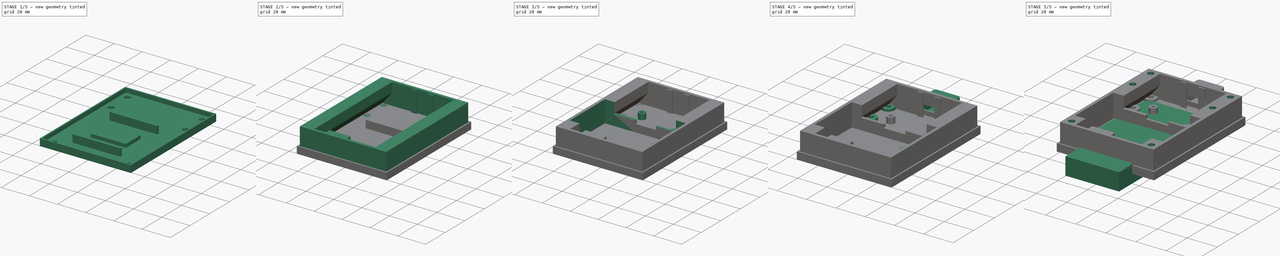
[diagram: build sequence overview — one tinted view per stage of 5, left to right]
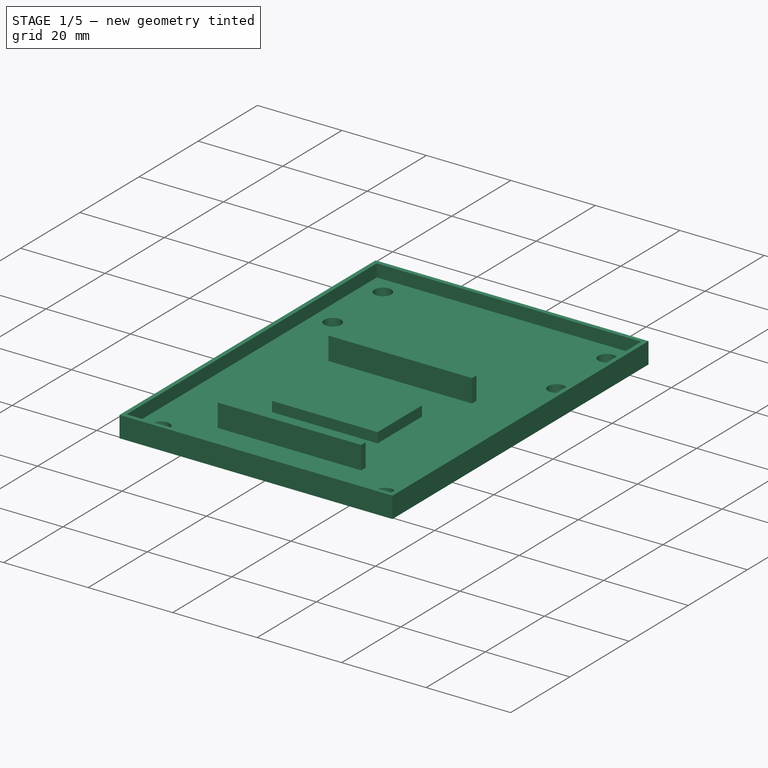
[diagram: stage 1 of 5 — iso view after this stage's code; geometry added in this stage tinted green]
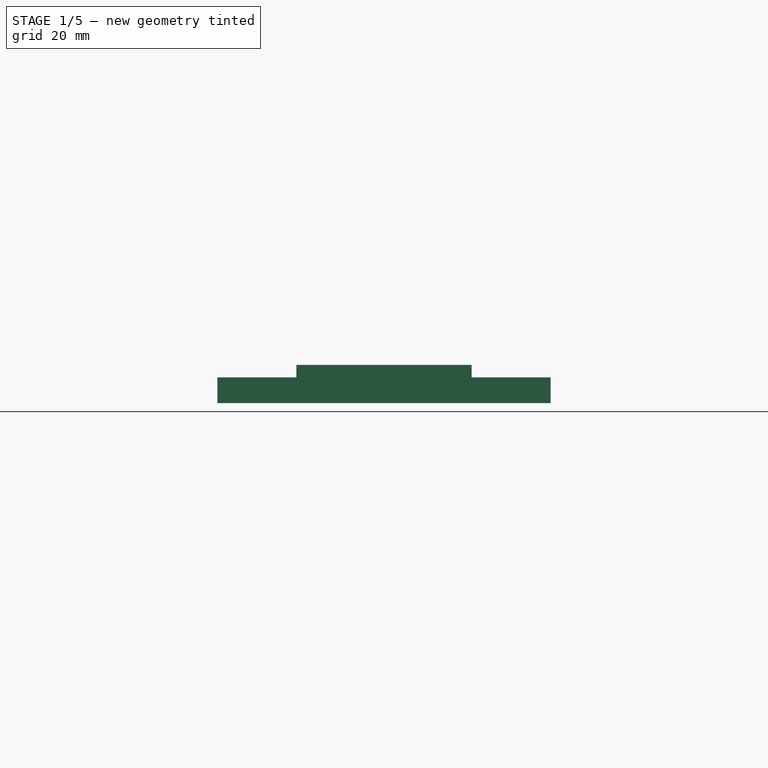
[diagram: stage 1 of 5 — front view after this stage's code; geometry added in this stage tinted green]
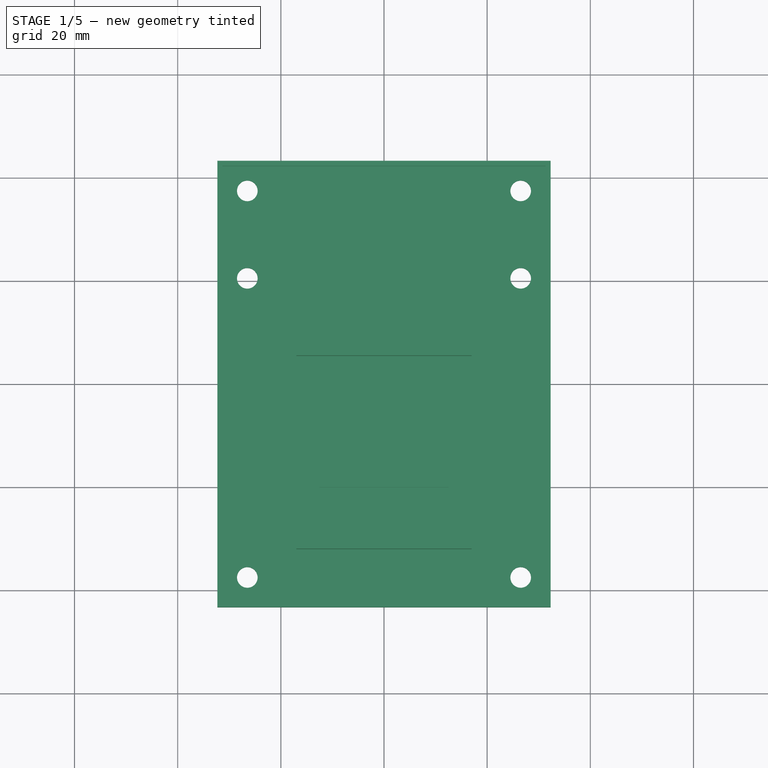
[diagram: stage 1 of 5 — top view after this stage's code; geometry added in this stage tinted green]
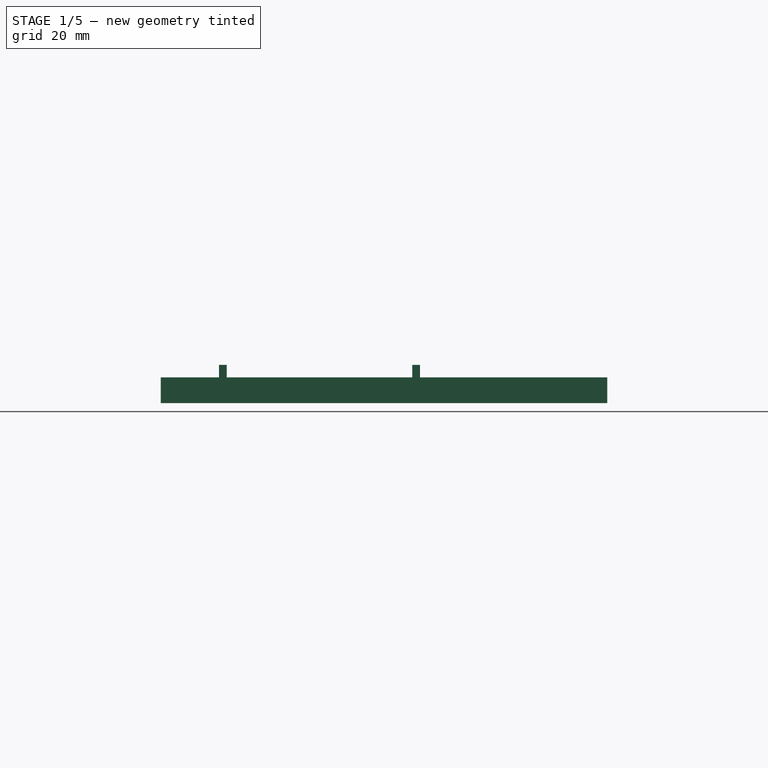
[diagram: stage 1 of 5 — right view after this stage's code; geometry added in this stage tinted green]
FCSTD DOCUMENT  (FreeCAD 0.21R33694 (Git))
Label: RAKTracker-V4
License: All rights reserved
LicenseURL: https://en.wikipedia.org/wiki/All_rights_reserved
objects: Part::Feature×99, App::Part×64, Sketcher::SketchObject×23, PartDesign::Pad×17, PartDesign::Pocket×6, PartDesign::Body×5, Spreadsheet::Sheet×1, PartDesign::Plane×1, PartDesign::Hole×1
note: 176 computed .brp shape members not serialized (recipe doc carries the construction recipe); baked Part::Feature solids carry a one-line shape summary decoded from their .brp

FEATURE [PartDesign::Body] Body002  label="SolarPanel"
  Group = -> [Sketch009,Pad007]
  Origin = -> Origin066
  Placement = pos=(0,6,-66) rot=(0,0,1;0rad)
  Tip = -> Pad007
FEATURE [Sketcher::SketchObject] Sketch010  label="BatBoxHolderGapSketch"
  AttachmentOffset = pos=(0,0,1.6) rot=(0,0,1;0rad)
  ExternalGeometry = -> [Sketch005]
  FullyConstrained = true
  MapMode = 5
  Placement = pos=(0,0,1.6) rot=(0,0,1;0rad)
  Support = -> [XY_Plane]
  expr: .AttachmentOffset.Base.z = <<RAKTrackerSheet>>.BoxFloorHeight
  sketch-geometry (4):
    g0: LineSegment StartX=-29 StartY=-30.478 StartZ=0 EndX=29 EndY=-30.478 EndZ=0
    g1: LineSegment StartX=29 StartY=-30.478 StartZ=0 EndX=29 EndY=5.478 EndZ=0
    g2: LineSegment StartX=29 StartY=5.478 StartZ=0 EndX=-29 EndY=5.478 EndZ=0
    g3: LineSegment StartX=-29 StartY=5.478 StartZ=0 EndX=-29 EndY=-30.478 EndZ=0
  constraints (10):
    c: Coincident(g0,g1)
    c: Coincident(g1,g2)
    c: Coincident(g2,g3)
    c: Coincident(g3,g0)
    c: Horizontal(g0)
    c: Horizontal(g2)
    c: Vertical(g1)
    c: Vertical(g3)
    c: Coincident(g0,g-3)
    c: Coincident(g1,g-4)
FEATURE [Sketcher::SketchObject] Sketch011  label="BoxGPSMountSketch1"
  ExternalGeometry = -> [Sketch,Sketch001]
  FullyConstrained = true
  MapMode = 5
  Support = -> [XY_Plane]
  expr: Constraints[19] = <<RAKTrackerSheet>>.GPSMountCornerRadius
  expr: Constraints[20] = <<RAKTrackerSheet>>.GPSMountCornerRadius
  expr: Constraints[21] = <<RAKTrackerSheet>>.GPSMountWallThickness + <<RAKTrackerSheet>>.GPSLength
  expr: Constraints[22] = <<RAKTrackerSheet>>.GPSLength + <<RAKTrackerSheet>>.GPSMountWallThickness
  sketch-geometry (8):
    g0: LineSegment StartX=-10.3 StartY=41.978 StartZ=0 EndX=10.3 EndY=41.978 EndZ=0
    g1: LineSegment StartX=-7.3 StartY=57.578 StartZ=0 EndX=7.3 EndY=57.578 EndZ=0
    g2: LineSegment StartX=8.8 StartY=56.078 StartZ=0 EndX=8.8 EndY=43.478 EndZ=0
    g3: LineSegment StartX=-8.8 StartY=56.078 StartZ=0 EndX=-8.8 EndY=43.478 EndZ=0
    g4: ArcOfCircle CenterX=-7.3 CenterY=56.078 CenterZ=0 NormalX=0 NormalY=0 NormalZ=1 AngleXU=0 Radius=1.5 StartAngle=1.5708 EndAngle=3.14159
    g5: ArcOfCircle CenterX=7.3 CenterY=56.078 CenterZ=0 NormalX=0 NormalY=0 NormalZ=1 AngleXU=0 Radius=1.5 StartAngle=6.81e-14 EndAngle=1.5708
    g6: ArcOfCircle CenterX=-10.3 CenterY=43.478 CenterZ=0 NormalX=0 NormalY=0 NormalZ=1 AngleXU=0 Radius=1.5 StartAngle=4.71239 EndAngle=6.28319
    g7: ArcOfCircle CenterX=10.3 CenterY=43.478 CenterZ=0 NormalX=0 NormalY=0 NormalZ=1 AngleXU=0 Radius=1.5 StartAngle=3.14159 EndAngle=4.71239
  constraints (23):
    c: PointOnObject(g0,g-3)
    c: PointOnObject(g0,g-3)
    c: Vertical(g2)
    c: Vertical(g3)
    c: Tangent(g3,g4) = -1.5708
    c: Tangent(g1,g4) = 1.5708
    c: Tangent(g2,g5) = 1.5708
    c: Tangent(g1,g5) = 1.5708
    c: Coincident(g6,g0)
    c: Coincident(g6,g3)
    c: Coincident(g7,g0)
    c: Coincident(g7,g2)
    c: Horizontal(g2,g3)
    c: Vertical(g7,g0)
    c: Vertical(g6,g0)
    c: Horizontal(g6,g3)
    c: Horizontal(g2,g7)
    c: Horizontal(g4,g5)
    c: Symmetric(g1,g1,g-2)
    c: Radius(g5) = 1.5
    c: Radius(g7) = 1.5
    c: DistanceX(g3,g2) = 17.6
    c: DistanceY(g-4,g1) = 17.6
FEATURE [Sketcher::SketchObject] Sketch012  label="BoxGPSMountSketch2"
  AttachmentOffset = pos=(0,0,39.978) rot=(0,0,1;0rad)
  FullyConstrained = true
  MapMode = 5
  Placement = pos=(0,39.978,8.9e-15) rot=(0,0.707107,0.707107;3.14159rad)
  Support = -> [XZ_Plane]
  expr: .AttachmentOffset.Base.z = <<RAKTrackerSheet>>.BoxLength / 2 - <<RAKTrackerSheet>>.BoxWallThicknessWidth
  expr: Constraints[7] = <<RAKTrackerSheet>>.BoxFloorHeight
  expr: Constraints[8] = <<RAKTrackerSheet>>.GPSHeight
  expr: Constraints[9] = <<RAKTrackerSheet>>.GPSLength
  sketch-geometry (4):
    g0: LineSegment StartX=-8 StartY=9.6 StartZ=0 EndX=8 EndY=9.6 EndZ=0
    g1: LineSegment StartX=8 StartY=9.6 StartZ=0 EndX=8 EndY=1.6 EndZ=0
    g2: LineSegment StartX=8 StartY=1.6 StartZ=0 EndX=-8 EndY=1.6 EndZ=0
    g3: LineSegment StartX=-8 StartY=1.6 StartZ=0 EndX=-8 EndY=9.6 EndZ=0
  constraints (11):
    c: Coincident(g0,g1)
    c: Coincident(g1,g2)
    c: Coincident(g2,g3)
    c: Coincident(g3,g0)
    c: Horizontal(g2)
    c: Vertical(g1)
    c: Vertical(g3)
    c: DistanceY(g-1,g2) = 1.6
    c: DistanceY(g1,g1) = 8
    c: DistanceX(g0,g0) = 16
    c: Symmetric(g0,g0,g-2)
FEATURE [PartDesign::Plane] DatumPlane  label="TopOfBox"
  Length = 74.3147
  MapMode = 2
  Placement = pos=(0,0,17.6) rot=(0,0,1;0rad)
  ResizeMode = 0
  Width = 99.6947
  expr: .Placement.Base.z = <<RAKTrackerSheet>>.BoxHeight
FEATURE [Sketcher::SketchObject] Sketch013  label="BatBoxLidHolesSketch"
  ExternalGeometry = -> [Sketch,Sketch005]
  FullyConstrained = true
  MapMode = 5
  Placement = pos=(0,0,17.6) rot=(0,0,1;0rad)
  Support = -> [DatumPlane]
  expr: Constraints[12] = <<RAKTrackerSheet>>.BoxScrewHoleDia
  expr: Constraints[13] = (<<RAKTrackerSheet>>.BoxRimWidth + <<RAKTrackerSheet>>.BoxWallThicknessLength) / 2
  expr: Constraints[14] = (<<RAKTrackerSheet>>.BoxRimWidth + <<RAKTrackerSheet>>.BoxWallThicknessWidth) / 2
  expr: Constraints[15] = (<<RAKTrackerSheet>>.BoxRimWidth + <<RAKTrackerSheet>>.BoxWallThicknessWidth) / 2
  expr: Constraints[16] = (<<RAKTrackerSheet>>.BoxRimWidth + <<RAKTrackerSheet>>.BoxWallThicknessLength) / 2
  expr: Constraints[17] = <<RAKTrackerSheet>>.StrapHoleDistance
  sketch-geometry (6):
    g0: Circle CenterX=-26.5 CenterY=37.478 CenterZ=0 NormalX=0 NormalY=0 NormalZ=1 AngleXU=0 Radius=2
    g1: Circle CenterX=-26.5 CenterY=-37.478 CenterZ=0 NormalX=0 NormalY=0 NormalZ=1 AngleXU=0 Radius=2
    g2: Circle CenterX=26.5 CenterY=-37.478 CenterZ=0 NormalX=0 NormalY=0 NormalZ=1 AngleXU=0 Radius=2
    g3: Circle CenterX=26.5 CenterY=37.478 CenterZ=0 NormalX=0 NormalY=0 NormalZ=1 AngleXU=0 Radius=2
    g4: Circle CenterX=-26.5 CenterY=20.522 CenterZ=0 NormalX=0 NormalY=0 NormalZ=1 AngleXU=0 Radius=2
    g5: Circle CenterX=26.5 CenterY=20.522 CenterZ=0 NormalX=0 NormalY=0 NormalZ=1 AngleXU=0 Radius=2
  constraints (18):
    c: Vertical(g3,g5)
    c: Vertical(g5,g2)
    c: Vertical(g0,g4)
    c: Vertical(g4,g1)
    c: Horizontal(g0,g3)
    c: Horizontal(g4,g5)
    c: Horizontal(g1,g2)
    c: Equal(g0,g3)
    c: Equal(g0,g5)
    c: Equal(g0,g4)
    c: Equal(g0,g1)
    c: Equal(g0,g2)
    c: Diameter(g0) = 4
    c: DistanceX(g3,g-5) = 4.5
    c: DistanceY(g3,g-5) = 4.5
    c: DistanceY(g-6,g1) = 4.5
    c: DistanceX(g-6,g1) = 4.5
    c: Distance(g4,g1) = 58
FEATURE [Sketcher::SketchObject] Sketch014  label="LidBaseSketch"
  FullyConstrained = true
  MapMode = 5
  Support = -> [XY_Plane067]
  expr: Constraints[10] = <<RAKTrackerSheet>>.LidLength
  expr: Constraints[9] = <<RAKTrackerSheet>>.LidWidth
  sketch-geometry (4):
    g0: LineSegment StartX=-32.3 StartY=43.278 StartZ=0 EndX=32.3 EndY=43.278 EndZ=0
    g1: LineSegment StartX=32.3 StartY=43.278 StartZ=0 EndX=32.3 EndY=-43.278 EndZ=0
    g2: LineSegment StartX=32.3 StartY=-43.278 StartZ=0 EndX=-32.3 EndY=-43.278 EndZ=0
    g3: LineSegment StartX=-32.3 StartY=-43.278 StartZ=0 EndX=-32.3 EndY=43.278 EndZ=0
  constraints (11):
    c: Coincident(g0,g1)
    c: Coincident(g1,g2)
    c: Coincident(g2,g3)
    c: Coincident(g3,g0)
    c: Horizontal(g0)
    c: Horizontal(g2)
    c: Vertical(g1)
    c: Vertical(g3)
    c: Symmetric(g0,g1,g-1)
    c: DistanceX(g0,g0) = 64.6
    c: DistanceY(g1,g1) = 86.556
FEATURE [PartDesign::Pad] Pad009  label="LidBase"
  Direction = (0,0,1)
  Length = 2
  Length2 = 10
  Profile = -> Sketch014
  ReferenceAxis = -> Sketch014 [N_Axis]
  Type = 0
  expr: Length = <<RAKTrackerSheet>>.LidHeight
FEATURE [Sketcher::SketchObject] Sketch015  label="LidOverhangSketch"
  ExternalGeometry = -> [Sketch014]
  FullyConstrained = true
  MapMode = 5
  Support = -> [XY_Plane067]
  expr: Constraints[19] = <<RAKTrackerSheet>>.LidOverhangThickness
  expr: Constraints[20] = <<RAKTrackerSheet>>.LidOverhangThickness
  sketch-geometry (8):
    g0: LineSegment StartX=-32.3 StartY=43.278 StartZ=0 EndX=32.3 EndY=43.278 EndZ=0
    g1: LineSegment StartX=32.3 StartY=43.278 StartZ=0 EndX=32.3 EndY=-43.278 EndZ=0
    g2: LineSegment StartX=32.3 StartY=-43.278 StartZ=0 EndX=-32.3 EndY=-43.278 EndZ=0
    g3: LineSegment StartX=-32.3 StartY=-43.278 StartZ=0 EndX=-32.3 EndY=43.278 EndZ=0
    g4: LineSegment StartX=-31.3 StartY=42.278 StartZ=0 EndX=31.3 EndY=42.278 EndZ=0
    g5: LineSegment StartX=31.3 StartY=42.278 StartZ=0 EndX=31.3 EndY=-42.278 EndZ=0
    g6: LineSegment StartX=31.3 StartY=-42.278 StartZ=0 EndX=-31.3 EndY=-42.278 EndZ=0
    g7: LineSegment StartX=-31.3 StartY=-42.278 StartZ=0 EndX=-31.3 EndY=42.278 EndZ=0
  constraints (21):
    c: Coincident(g0,g1)
    c: Coincident(g1,g2)
    c: Coincident(g2,g3)
    c: Coincident(g3,g0)
    c: Horizontal(g0)
    c: Horizontal(g2)
    c: Vertical(g1)
    c: Vertical(g3)
    c: Coincident(g0,g-3)
    c: Coincident(g1,g-4)
    c: Coincident(g4,g5)
    c: Coincident(g5,g6)
    c: Coincident(g6,g7)
    c: Coincident(g7,g4)
    c: Horizontal(g4)
    c: Horizontal(g6)
    c: Vertical(g5)
    c: Vertical(g7)
    c: Symmetric(g4,g5,g-1)
    c: DistanceX(g0,g4) = 1
    c: DistanceY(g4,g0) = 1
FEATURE [PartDesign::Pad] Pad010  label="LidOverhang"
  BaseFeature = -> Pad009
  Direction = (0,0,1)
  Length = 5
  Length2 = 10
  Profile = -> Sketch015
  ReferenceAxis = -> Sketch015 [N_Axis]
  Type = 0
FEATURE [Sketcher::SketchObject] Sketch016  label="LidBatBoxHolderWallSketch"
  FullyConstrained = true
  MapMode = 5
  Support = -> [XY_Plane067]
  expr: Constraints[18] = <<RAKTrackerSheet>>.PCBWidthOuter + <<RAKTrackerSheet>>.BoxWallThicknessWidth
  expr: Constraints[19] = <<RAKTrackerSheet>>.BoxInternalWallThickness
  expr: Constraints[21] = <<RAKTrackerSheet>>.BoxWidth - 2 * <<RAKTrackerSheet>>.BoxWallThicknessLength - 2 * <<RAKTrackerSheet>>.BoxRimWidth - 10 mm
  expr: Constraints[31] = <<RAKTrackerSheet>>.BoxBatSpace
  expr: Constraints[8] = <<RAKTrackerSheet>>.BoxWidth
  expr: Constraints[9] = <<RAKTrackerSheet>>.BoxLength
  sketch-geometry (12):
    g0: LineSegment StartX=-31 StartY=41.978 StartZ=0 EndX=31 EndY=41.978 EndZ=0
    g1: LineSegment StartX=31 StartY=41.978 StartZ=0 EndX=31 EndY=-41.978 EndZ=0
    g2: LineSegment StartX=31 StartY=-41.978 StartZ=0 EndX=-31 EndY=-41.978 EndZ=0
    g3: LineSegment StartX=-31 StartY=-41.978 StartZ=0 EndX=-31 EndY=41.978 EndZ=0
    g4: LineSegment StartX=-17 StartY=6.978 StartZ=0 EndX=17 EndY=6.978 EndZ=0
    g5: LineSegment StartX=17 StartY=6.978 StartZ=0 EndX=17 EndY=5.478 EndZ=0
    g6: LineSegment StartX=17 StartY=5.478 StartZ=0 EndX=-17 EndY=5.478 EndZ=0
    g7: LineSegment StartX=-17 StartY=5.478 StartZ=0 EndX=-17 EndY=6.978 EndZ=0
    g8: LineSegment StartX=-17 StartY=-31.978 StartZ=0 EndX=17 EndY=-31.978 EndZ=0
    g9: LineSegment StartX=17 StartY=-31.978 StartZ=0 EndX=17 EndY=-30.478 EndZ=0
    g10: LineSegment StartX=17 StartY=-30.478 StartZ=0 EndX=-17 EndY=-30.478 EndZ=0
    g11: LineSegment StartX=-17 StartY=-30.478 StartZ=0 EndX=-17 EndY=-31.978 EndZ=0
  constraints (34):
    c: Coincident(g0,g1)
    c: Coincident(g1,g2)
    c: Coincident(g2,g3)
    c: Coincident(g3,g0)
    c: Horizontal(g0)
    c: Horizontal(g2)
    c: Vertical(g1)
    c: Vertical(g3)
    c: DistanceX(g0,g0) = 62
    c: DistanceY(g1,g1) = 83.956
    c: Symmetric(g0,g1,g-1)
    c: Coincident(g4,g5)
    c: Coincident(g5,g6)
    c: Coincident(g6,g7)
    c: Coincident(g7,g4)
    c: Horizontal(g6)
    c: Vertical(g5)
    c: Vertical(g7)
    c: DistanceY(g4,g0) = 35
    c: DistanceY(g5,g5) = 1.5
    c: Symmetric(g4,g4,g-2)
    c: DistanceX(g4,g4) = 34
    c: Coincident(g8,g9)
    c: Coincident(g9,g10)
    c: Coincident(g10,g11)
    c: Coincident(g11,g8)
    c: Horizontal(g8)
    c: Horizontal(g10)
    c: Vertical(g9)
    c: Vertical(g11)
    c: Equal(g5,g9)
    c: DistanceY(g9,g5) = 35.956
    c: Vertical(g6,g10)
    c: Vertical(g5,g9)
FEATURE [PartDesign::Pad] Pad011  label="LidBatBoxHolderWall"
  BaseFeature = -> Pad010
  Direction = (0,0,1)
  Length = 7.43333
  Length2 = 10
  Profile = -> Sketch016
  ReferenceAxis = -> Sketch016 [N_Axis]
  Type = 0
  expr: Length = <<RAKTrackerSheet>>.BoxHeight - <<RAKTrackerSheet>>.BatHolderHeight / 3 * 2 - <<RAKTrackerSheet>>.BoxFloorHeight - 0.5 mm
FEATURE [Sketcher::SketchObject] Sketch017  label="LidBatBoxHolderBumpSketch"
  ExternalGeometry = -> [Sketch016]
  FullyConstrained = true
  MapMode = 5
  Support = -> [XY_Plane067]
  sketch-geometry (5):
    g0: LineSegment StartX=-12.5 StartY=-20 StartZ=0 EndX=-12.5 EndY=-5 EndZ=0
    g1: LineSegment StartX=-12.5 StartY=-5 StartZ=0 EndX=12.5 EndY=-5 EndZ=0
    g2: LineSegment StartX=12.5 StartY=-5 StartZ=0 EndX=12.5 EndY=-20 EndZ=0
    g3: LineSegment StartX=12.5 StartY=-20 StartZ=0 EndX=-12.5 EndY=-20 EndZ=0
    g4: GeomPoint X=5e-16 Y=-12.5 Z=0
  constraints (12):
    c: Coincident(g0,g1)
    c: Coincident(g1,g2)
    c: Coincident(g2,g3)
    c: Coincident(g3,g0)
    c: Horizontal(g1)
    c: Horizontal(g3)
    c: Vertical(g0)
    c: Vertical(g2)
    c: Symmetric(g1,g0,g4)
    c: Symmetric(g-4,g-3,g4)
    c: DistanceY(g2,g2) = 15
    c: DistanceX(g1,g1) = 25
FEATURE [PartDesign::Pad] Pad012  label="LidBatBoxHolderBump"
  BaseFeature = -> Pad011
  Direction = (0,0,1)
  Length = 4.4
  Length2 = 10
  Profile = -> Sketch017
  ReferenceAxis = -> Sketch017 [N_Axis]
  Type = 0
  expr: Length = <<RAKTrackerSheet>>.BoxHeight - <<RAKTrackerSheet>>.BatBoxHeight - <<RAKTrackerSheet>>.BoxFloorHeight
FEATURE [Sketcher::SketchObject] Sketch018  label="LidScrewHoleSketch"
  ExternalGeometry = -> [Sketch016]
  FullyConstrained = true
  MapMode = 5
  Support = -> [XY_Plane067]
  expr: Constraints[10] = <<RAKTrackerSheet>>.BoxWidth
  expr: Constraints[11] = <<RAKTrackerSheet>>.BoxLength
  expr: Constraints[24] = <<RAKTrackerSheet>>.LidScrewHoleDia
  expr: Constraints[25] = (<<RAKTrackerSheet>>.BoxRimWidth + <<RAKTrackerSheet>>.BoxWallThicknessWidth) / 2
  expr: Constraints[26] = (<<RAKTrackerSheet>>.BoxRimWidth + <<RAKTrackerSheet>>.BoxWallThicknessWidth) / 2
  expr: Constraints[27] = (<<RAKTrackerSheet>>.BoxRimWidth + <<RAKTrackerSheet>>.BoxWallThicknessWidth) / 2
  expr: Constraints[28] = (<<RAKTrackerSheet>>.BoxRimWidth + <<RAKTrackerSheet>>.BoxWallThicknessWidth) / 2
  expr: Constraints[29] = <<RAKTrackerSheet>>.StrapHoleDistance
  sketch-geometry (11):
    g0: LineSegment StartX=-31 StartY=-41.978 StartZ=0 EndX=-31 EndY=41.978 EndZ=0
    g1: LineSegment StartX=-31 StartY=41.978 StartZ=0 EndX=31 EndY=41.978 EndZ=0
    g2: LineSegment StartX=31 StartY=41.978 StartZ=0 EndX=31 EndY=-41.978 EndZ=0
    g3: LineSegment StartX=31 StartY=-41.978 StartZ=0 EndX=-31 EndY=-41.978 EndZ=0
    g4: GeomPoint X=0 Y=0 Z=0
    g5: Circle CenterX=-26.5 CenterY=37.478 CenterZ=0 NormalX=0 NormalY=0 NormalZ=1 AngleXU=0 Radius=2
    g6: Circle CenterX=-26.5 CenterY=-37.478 CenterZ=0 NormalX=0 NormalY=0 NormalZ=1 AngleXU=0 Radius=2
    g7: Circle CenterX=-26.5 CenterY=20.522 CenterZ=0 NormalX=0 NormalY=0 NormalZ=1 AngleXU=0 Radius=2
    g8: Circle CenterX=26.5 CenterY=37.478 CenterZ=0 NormalX=0 NormalY=0 NormalZ=1 AngleXU=0 Radius=2
    g9: Circle CenterX=26.5 CenterY=20.522 CenterZ=0 NormalX=0 NormalY=0 NormalZ=1 AngleXU=0 Radius=2
    g10: Circle CenterX=26.5 CenterY=-37.478 CenterZ=0 NormalX=0 NormalY=0 NormalZ=1 AngleXU=0 Radius=2
  constraints (30):
    c: Coincident(g0,g1)
    c: Coincident(g1,g2)
    c: Coincident(g2,g3)
    c: Coincident(g3,g0)
    c: Horizontal(g1)
    c: Horizontal(g3)
    c: Vertical(g0)
    c: Vertical(g2)
    c: Symmetric(g1,g0,g4)
    c: Coincident(g4,g-1)
    c: DistanceX(g1,g1) = 62
    c: DistanceY(g2,g2) = 83.956
    c: Horizontal(g5,g8)
    c: Horizontal(g9,g7)
    c: Horizontal(g6,g10)
    c: Vertical(g5,g7)
    c: Vertical(g7,g6)
    c: Vertical(g8,g9)
    c: Vertical(g9,g10)
    c: Equal(g5,g8)
    c: Equal(g5,g9)
    c: Equal(g5,g7)
    c: Equal(g5,g6)
    c: Equal(g5,g10)
    c: Diameter(g5) = 4
    c: DistanceX(g8,g1) = 4.5
    c: DistanceY(g8,g1) = 4.5
    c: DistanceX(g0,g6) = 4.5
    c: DistanceY(g0,g6) = 4.5
    c: Distance(g7,g6) = 58
FEATURE [PartDesign::Pocket] Pocket005  label="LidScrewHole"
  BaseFeature = -> Pad012
  Direction = (0,0,-1)
  Length = 2
  Length2 = 5
  Profile = -> Sketch018
  ReferenceAxis = -> Sketch018 [N_Axis]
  Reversed = true
  Type = 0
  expr: Length = <<RAKTrackerSheet>>.LidHeight
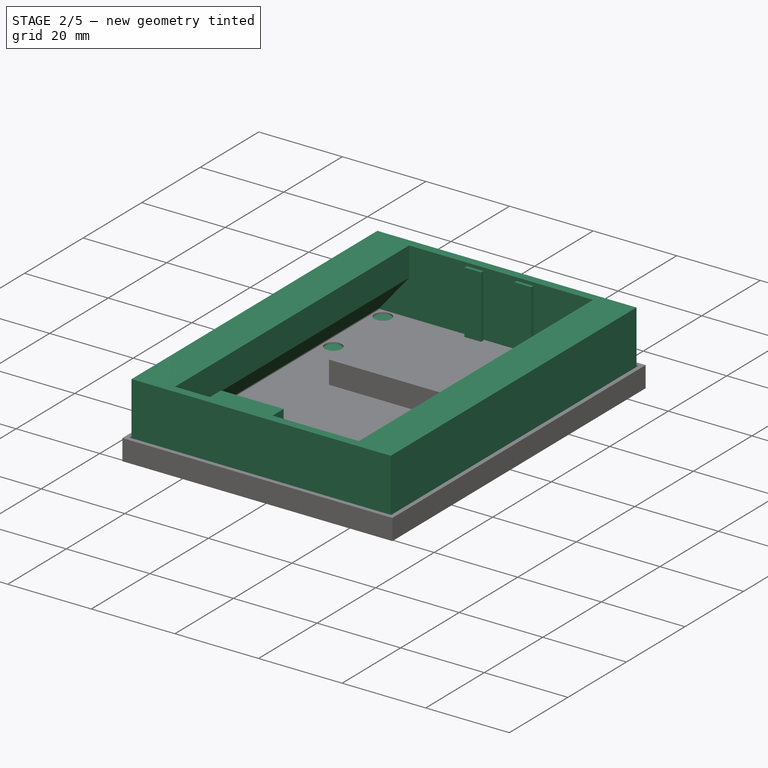
[diagram: stage 2 of 5 — iso view after this stage's code; geometry added in this stage tinted green]
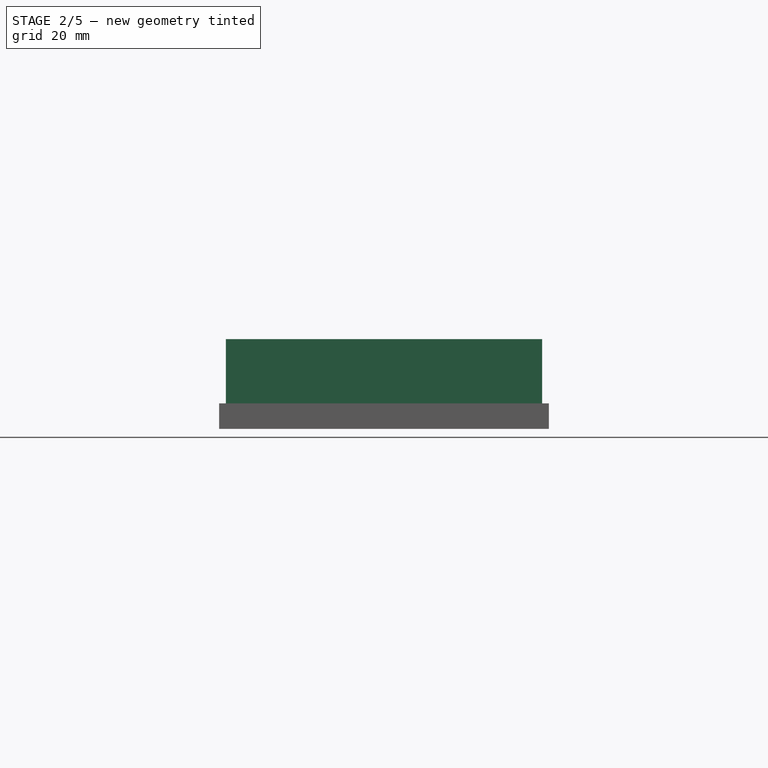
[diagram: stage 2 of 5 — front view after this stage's code; geometry added in this stage tinted green]
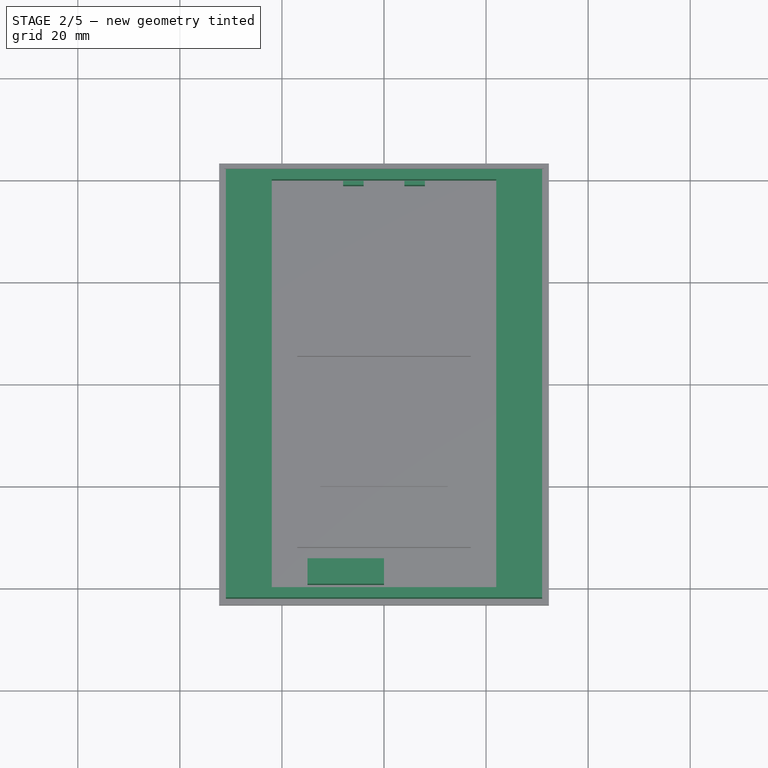
[diagram: stage 2 of 5 — top view after this stage's code; geometry added in this stage tinted green]
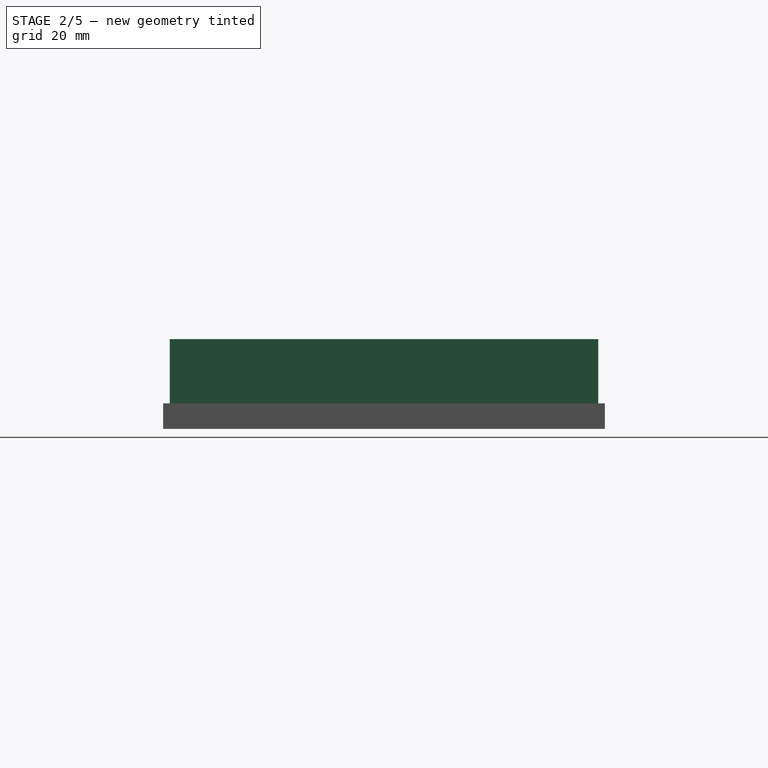
[diagram: stage 2 of 5 — right view after this stage's code; geometry added in this stage tinted green]
FEATURE [Spreadsheet::Sheet] Spreadsheet  label="RAKTrackerSheet"
  cells = A1='Box Dimensions; D1='Components; G1='TODO; G2='(Optional) Remove rum in favour of normal wall; A3='Box Length; B3(BoxLength)==B7 + E14 + B12 + B13 + B12 + E28 + B7; D3='Solar Panel Length; E3(SolarPanelLength)==70.5 mm; G3='We have 5% margin but this can be 1%. Changes all dimensions so leaving that for later.; A4='Box Width; B4(BoxWidth)==62 mm; D4='Solar Panel Width; E4(SolarPanelWidth)==55.5 mm; G4='How to make the box not slide on the strap?; A5='Box floor; B5(BoxFloorHeight)==1.6 mm; D5='Solar Panel height; E5(SolarPanelHeight)==2.5 mm; A6='Box wall thickness length (including screws); B6(BoxWallThicknessLength)==2 mm; A7='Box wall thickness width (including screws); B7(BoxWallThicknessWidth)==2 mm; D7='Battery Length; E7(BatLength)==55 mm; G7='Battery Box Length; H7(BatBoxLength)==E7 + H12; A8='Box Screw Hole Dia; B8(BoxScrewHoleDia)==4 mm; D8='Battery Width; E8(BatWidth)==34 mm; G8='Battery Box Width; H8(BatBoxWidth)==E8 + 2 * H12; A9='Box Screw Height/Depth; B9(BoxScrewHeight)==8 mm; D9='Battery Height; E9(BatHeight)==10 mm; G9='Battery Box Height; H9(BatBoxHeight)==E9 + 2 * H12; A10='Box Height; B10(BoxHeight)==B5 + E18; D10='Battery Holder Height; E10(BatHolderHeight)==E9 + B5 + 0.5 mm; A11='Box Corner Radisu; B11(BoxCornerRadius)==1 mm; D11='Battery Holder Dia; E11(BatHolderDia)==8 mm; G11='Battery Box Wire Gap; H11(BatBoxWireGap)==3 mm; A12='Box Internal Wall Width; B12(BoxInternalWallThickness)==1.5 mm; D12='Battery Holder Hole Dia; E12(BatHolderHoleDia)==4 mm; G12='Battery Box Wall Thickness; H12(BatBoxWallThickness)==0.8 mm; A13='Box Battery Space (width); B13(BoxBatSpace)==H8 * 1.01; C13='1% margin; A14='Box internal Length; B14(BoxInternalLength)==B3 - 2 * B7; D14='PCB Width Outer; E14(PCBWidthOuter)==33 mm; A15='Box Internal Width; B15(BoxInternalWidth)==B4 - 2 * B6; D15='PCB Mount Hole Distance (length); E15(PCBMountHoleDistanceLength)==31 mm; D16='PCB Length; E16==36 mm; D17='PCB Width; E17==30.5 mm; A18='Seal Depth; B18(SealDepth)==0.6 mm; D18='PCB Height; E18==16 mm; A19='Seal width; B19(SealWidth)==1 mm; D19='PCB Mount Height; E19(PCBMountHeight)==4.5 mm + B5; A20='Seal Corner Radius; B20(SealCornerRadius)==2.5 mm; D20='PCB Mount From Side; E20(PCBMountFromSide)==7.5 mm; D21='PCB Mount Hole Dia; E21(PCBMountHoleDia)==4 mm; A22='GPS Mount Corner Radius; B22(GPSMountCornerRadius)==1.5 mm; D22='PCB Mount Dia; E22(PCBMountDia)==8 mm; A23='GPS Mount Wall Thickness; B23(GPSMountWallThickness)==1.6 mm; D23='PCB Mount Hole Distance (side); E23(PCBMountHoleDistance)==22 mm; D24='GPS Length and Width; E24(GPSLength)==16 mm; A25='Lid Screw Hole DIa; B25(LidScrewHoleDia)==4 mm; D25='GPS Height; E25(GPSHeight)==8 mm; A26='Lid Height; B26(LidHeight)==2 mm; A27='Lid Screw Hole Depth; B27(LidScrewHoleDepth)==5 mm; D27='Antenna Length; E27(AntLength)==40 mm; A28='Box Upper rim width; B28(BoxRimWidth)==7 mm; D28='Antenne width; E28(AntWidth)==8 mm; A29='Box Upper rim min vertical height; B29(BoxRimHeight)==7 mm; D29='Antenna Height; E29(AntHeight)==1.5 mm; D30='AntBraceThickness; E30(AntWallThickness)==1 mm; A31='Lid Overhang thickness; B31(LidOverhangThickness)==1 mm; D31='Strap WIdth; E31==50 mm; A32='Lid Overhang margin; B32(LidOverhangMargin)==0.3 mm; D32='Strap Holder Dia; E32(StrapHolderDia)==8 mm; D33='Strap Holder hole distance; E33(StrapHoleDistance)==E31 + E32; A34='Lid Length; B34(LidLength)==B3 + B32 + B31 + B31 + B32; A35='Lid Width; B35(LidWidth)==B4 + B32 + B31 + B31 + B32; D35='BraceWidth; E35(BraceWidth)==8 mm
FEATURE [Sketcher::SketchObject] Sketch  label="BoxBaseSketch"
  FullyConstrained = true
  MapMode = 5
  Support = -> [XY_Plane]
  expr: Constraints[10] = <<RAKTrackerSheet>>.BoxLength
  expr: Constraints[9] = <<RAKTrackerSheet>>.BoxWidth
  sketch-geometry (8):
    g0: LineSegment StartX=-31 StartY=41.978 StartZ=0 EndX=31 EndY=41.978 EndZ=0
    g1: LineSegment StartX=31 StartY=41.978 StartZ=0 EndX=31 EndY=-41.978 EndZ=0
    g2: LineSegment StartX=31 StartY=-41.978 StartZ=0 EndX=-31 EndY=-41.978 EndZ=0
    g3: LineSegment StartX=-31 StartY=-41.978 StartZ=0 EndX=-31 EndY=41.978 EndZ=0
    g4: ArcOfCircle CenterX=0 CenterY=7.5 CenterZ=0 NormalX=0 NormalY=0 NormalZ=1 AngleXU=0 Radius=7.5 StartAngle=0 EndAngle=3.14159
    g5: ArcOfCircle CenterX=-2e-16 CenterY=-7.5 CenterZ=0 NormalX=0 NormalY=0 NormalZ=1 AngleXU=0 Radius=7.5 StartAngle=3.14159 EndAngle=6.28319
    g6: LineSegment StartX=-7.5 StartY=7.5 StartZ=0 EndX=-7.5 EndY=-7.5 EndZ=0
    g7: LineSegment StartX=7.5 StartY=-7.5 StartZ=0 EndX=7.5 EndY=7.5 EndZ=0
  constraints (20):
    c: Coincident(g0,g1)
    c: Coincident(g1,g2)
    c: Coincident(g2,g3)
    c: Coincident(g3,g0)
    c: Horizontal(g0)
    c: Horizontal(g2)
    c: Vertical(g1)
    c: Vertical(g3)
    c: Symmetric(g0,g1,g-1)
    c: DistanceX(g0,g0) = 62
    c: DistanceY(g3,g3) = 83.956
    c: Tangent(g4,g6) = -1.5708
    c: Tangent(g6,g5) = -1.5708
    c: Tangent(g5,g7) = -1.5708
    c: Tangent(g7,g4) = -1.5708
    c: Equal(g4,g5)
    c: PointOnObject(g4,g-2)
    c: Symmetric(g4,g5,g-1)
    c: Radius(g4) = 7.5
    c: DistanceY(g7,g7) = 15
FEATURE [PartDesign::Pad] Pad  label="BoxBase"
  Direction = (0,0,1)
  Length = 1.6
  Length2 = 10
  Profile = -> Sketch
  ReferenceAxis = -> Sketch [N_Axis]
  Type = 0
  expr: Length = <<RAKTrackerSheet>>.BoxFloorHeight
FEATURE [Sketcher::SketchObject] Sketch001  label="BoxWallSketch"
  ExternalGeometry = -> [Sketch]
  FullyConstrained = true
  MapMode = 5
  Support = -> [XY_Plane]
  expr: Constraints[17] = <<RAKTrackerSheet>>.BoxInternalWidth
  expr: Constraints[18] = <<RAKTrackerSheet>>.BoxInternalLength
  sketch-geometry (8):
    g0: LineSegment StartX=-31 StartY=41.978 StartZ=0 EndX=-31 EndY=-41.978 EndZ=0
    g1: LineSegment StartX=-31 StartY=-41.978 StartZ=0 EndX=31 EndY=-41.978 EndZ=0
    g2: LineSegment StartX=31 StartY=-41.978 StartZ=0 EndX=31 EndY=41.978 EndZ=0
    g3: LineSegment StartX=-31 StartY=41.978 StartZ=0 EndX=31 EndY=41.978 EndZ=0
    g4: LineSegment StartX=-29 StartY=39.978 StartZ=0 EndX=29 EndY=39.978 EndZ=0
    g5: LineSegment StartX=29 StartY=39.978 StartZ=0 EndX=29 EndY=-39.978 EndZ=0
    g6: LineSegment StartX=29 StartY=-39.978 StartZ=0 EndX=-29 EndY=-39.978 EndZ=0
    g7: LineSegment StartX=-29 StartY=-39.978 StartZ=0 EndX=-29 EndY=39.978 EndZ=0
  constraints (19):
    c: Coincident(g0,g-4)
    c: Coincident(g0,g-6)
    c: Coincident(g1,g0)
    c: Coincident(g1,g-6)
    c: Coincident(g2,g1)
    c: Coincident(g2,g-5)
    c: Coincident(g3,g0)
    c: Coincident(g3,g2)
    c: Coincident(g4,g5)
    c: Coincident(g5,g6)
    c: Coincident(g6,g7)
    c: Coincident(g7,g4)
    c: Horizontal(g4)
    c: Horizontal(g6)
    c: Vertical(g5)
    c: Vertical(g7)
    c: Symmetric(g4,g5,g-1)
    c: DistanceX(g4,g4) = 58
    c: DistanceY(g5,g5) = 79.956
FEATURE [PartDesign::Pad] Pad001  label="BoxWall"
  BaseFeature = -> Pad
  Direction = (0,0,1)
  Length = 17.6
  Length2 = 10
  Profile = -> Sketch001
  ReferenceAxis = -> Sketch001 [N_Axis]
  Type = 0
  expr: Length = <<RAKTrackerSheet>>.BoxHeight
FEATURE [Sketcher::SketchObject] Sketch002  label="BoxRimSketch"
  ExternalGeometry = -> [Sketch001]
  FullyConstrained = true
  MapMode = 5
  Placement = pos=(0,0,0) rot=(1,0,0;1.5708rad)
  Support = -> [XZ_Plane]
  expr: Constraints[15] = <<RAKTrackerSheet>>.BoxHeight
  expr: Constraints[16] = <<RAKTrackerSheet>>.BoxRimWidth
  expr: Constraints[20] = <<RAKTrackerSheet>>.BoxRimHeight
  sketch-geometry (8):
    g0: LineSegment StartX=-29 StartY=17.6 StartZ=0 EndX=-29 EndY=2.25772 EndZ=0
    g1: LineSegment StartX=-29 StartY=2.25772 StartZ=0 EndX=-22 EndY=10.6 EndZ=0
    g2: LineSegment StartX=-22 StartY=10.6 StartZ=0 EndX=-22 EndY=17.6 EndZ=0
    g3: LineSegment StartX=-22 StartY=17.6 StartZ=0 EndX=-29 EndY=17.6 EndZ=0
    g4: LineSegment StartX=22 StartY=17.6 StartZ=0 EndX=22 EndY=10.6 EndZ=0
    g5: LineSegment StartX=22 StartY=10.6 StartZ=0 EndX=29 EndY=2.25772 EndZ=0
    g6: LineSegment StartX=29 StartY=17.6 StartZ=0 EndX=29 EndY=2.25772 EndZ=0
    g7: LineSegment StartX=29 StartY=17.6 StartZ=0 EndX=22 EndY=17.6 EndZ=0
  constraints (24):
    c: Vertical(g0)
    c: Vertical(g2)
    c: Coincident(g3,g2)
    c: Coincident(g3,g0)
    c: Vertical(g4)
    c: Coincident(g6,g5)
    c: Coincident(g7,g6)
    c: Coincident(g7,g4)
    c: Vertical(g6)
    c: Horizontal(g7)
    c: Horizontal(g3)
    c: Coincident(g1,g2)
    c: Horizontal(g2,g4)
    c: Vertical(g-3,g1)
    c: Vertical(g-4,g5)
    c: DistanceY(g-1,g2) = 17.6
    c: DistanceX(g3,g3) = 7
    c: Equal(g3,g7)
    c: Coincident(g0,g1)
    c: Coincident(g4,g5)
    c: DistanceY(g2,g2) = 7
    c: Equal(g2,g4)
    c: Angle(g1,g0) = 0.698132
    c: Angle(g6,g5) = 0.698132
FEATURE [PartDesign::Pad] Pad002  label="BoxRim"
  BaseFeature = -> Pad001
  Direction = (0,-1,-2e-16)
  Length = 83.956
  Length2 = 10
  Midplane = true
  Profile = -> Sketch002
  ReferenceAxis = -> Sketch002 [N_Axis]
  Type = 0
  expr: Length = <<RAKTrackerSheet>>.BoxLength
FEATURE [PartDesign::Body] Body004  label="Brace"
  Group = -> [Sketch019,Pad013,Sketch020,Pad014,Hole]
  Origin = -> Origin068
  Placement = pos=(-2.7e-14,0,61) rot=(0,1,0;3.14159rad)
  Tip = -> Hole
FEATURE [Sketcher::SketchObject] Sketch021  label="LidAntHolderSketch"
  ExternalGeometry = -> [Sketch015]
  FullyConstrained = true
  MapMode = 5
  Support = -> [XY_Plane067]
  expr: Constraints[10] = <<RAKTrackerSheet>>.BoxWallThicknessWidth + 1 mm
  sketch-geometry (4):
    g0: LineSegment StartX=-15 StartY=-34.278 StartZ=0 EndX=0 EndY=-34.278 EndZ=0
    g1: LineSegment StartX=0 StartY=-34.278 StartZ=0 EndX=0 EndY=-39.278 EndZ=0
    g2: LineSegment StartX=0 StartY=-39.278 StartZ=0 EndX=-15 EndY=-39.278 EndZ=0
    g3: LineSegment StartX=-15 StartY=-39.278 StartZ=0 EndX=-15 EndY=-34.278 EndZ=0
  constraints (12):
    c: Coincident(g0,g1)
    c: Coincident(g1,g2)
    c: Coincident(g2,g3)
    c: Coincident(g3,g0)
    c: Horizontal(g0)
    c: Horizontal(g2)
    c: Vertical(g1)
    c: Vertical(g3)
    c: PointOnObject(g1,g-2)
    c: DistanceY(g3,g3) = 5
    c: DistanceY(g-3,g1) = 3
    c: DistanceX(g0,g0) = 15
FEATURE [PartDesign::Pad] Pad015  label="LidAntHolder"
  BaseFeature = -> Pocket005
  Direction = (0,0,1)
  Length = 16.5
  Length2 = 10
  Profile = -> Sketch021
  ReferenceAxis = -> Sketch021 [N_Axis]
  Type = 0
  expr: Length = <<RAKTrackerSheet>>.BoxHeight - <<RAKTrackerSheet>>.AntHeight - <<RAKTrackerSheet>>.BoxFloorHeight + <<RAKTrackerSheet>>.LidHeight
FEATURE [PartDesign::Body] Body  label="Box"
  Group = -> [Sketch,Pad,Sketch001,Pad001,Sketch002,Pad002,Sketch003,Pad003,Sketch004,Pad004,Sketch005,Pad005,Sketch010,Sketch011,Pocket006,Pad008,Sketch012,Pocket003,Sketch013,Pocket004]
  Origin = -> Origin
  Placement = pos=(0,0,-45) rot=(0,0,1;0rad)
  Tip = -> Pocket004
FEATURE [Sketcher::SketchObject] Sketch022  label="LidGPSHolderSketch"
  ExternalGeometry = -> [Sketch015]
  FullyConstrained = true
  MapMode = 5
  Support = -> [XY_Plane067]
  expr: Constraints[18] = <<RAKTrackerSheet>>.LidOverhangMargin * 2 + <<RAKTrackerSheet>>.BoxWallThicknessWidth
  expr: Constraints[21] = <<RAKTrackerSheet>>.GPSLength
  sketch-geometry (8):
    g0: LineSegment StartX=-8 StartY=39.678 StartZ=0 EndX=-4 EndY=39.678 EndZ=0
    g1: LineSegment StartX=-4 StartY=39.678 StartZ=0 EndX=-4 EndY=38.878 EndZ=0
    g2: LineSegment StartX=-4 StartY=38.878 StartZ=0 EndX=-8 EndY=38.878 EndZ=0
    g3: LineSegment StartX=-8 StartY=38.878 StartZ=0 EndX=-8 EndY=39.678 EndZ=0
    g4: LineSegment StartX=8 StartY=39.678 StartZ=0 EndX=4 EndY=39.678 EndZ=0
    g5: LineSegment StartX=4 StartY=39.678 StartZ=0 EndX=4 EndY=38.878 EndZ=0
    g6: LineSegment StartX=4 StartY=38.878 StartZ=0 EndX=8 EndY=38.878 EndZ=0
    g7: LineSegment StartX=8 StartY=38.878 StartZ=0 EndX=8 EndY=39.678 EndZ=0
  constraints (23):
    c: Coincident(g0,g1)
    c: Coincident(g1,g2)
    c: Coincident(g2,g3)
    c: Coincident(g3,g0)
    c: Horizontal(g0)
    c: Horizontal(g2)
    c: Vertical(g1)
    c: Vertical(g3)
    c: Coincident(g4,g5)
    c: Coincident(g5,g6)
    c: Coincident(g6,g7)
    c: Coincident(g7,g4)
    c: Horizontal(g4)
    c: Horizontal(g6)
    c: Vertical(g5)
    c: Vertical(g7)
    c: DistanceY(g3,g3) = 0.8
    c: Equal(g3,g5)
    c: DistanceY(g4,g-3) = 2.6
    c: DistanceX(g2,g2) = 4
    c: Equal(g2,g6)
    c: DistanceX(g2,g6) = 16
    c: Symmetric(g0,g4,g-2)
FEATURE [PartDesign::Pad] Pad016  label="LidGPSHolder"
  BaseFeature = -> Pad015
  Direction = (0,0,1)
  Length = 17
  Length2 = 10
  Profile = -> Sketch022
  ReferenceAxis = -> Sketch022 [N_Axis]
  Type = 0
  expr: Length = <<RAKTrackerSheet>>.BoxHeight - <<RAKTrackerSheet>>.BoxFloorHeight + <<RAKTrackerSheet>>.LidHeight - 1 mm
FEATURE [PartDesign::Body] Body003  label="Lid"
  Group = -> [Sketch014,Pad009,Sketch015,Pad010,Sketch016,Pad011,Sketch017,Pad012,Sketch018,Pocket005,Sketch021,Pad015,Sketch022,Pad016]
  Origin = -> Origin067
  Placement = pos=(5e-15,0,25.5) rot=(0,1,0;3.14159rad)
  Tip = -> Pad016
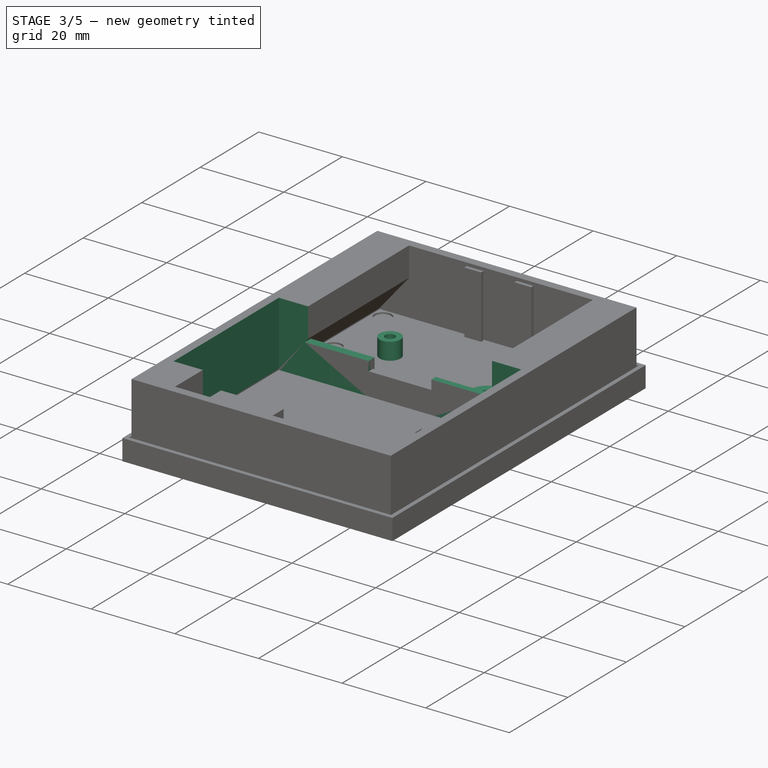
[diagram: stage 3 of 5 — iso view after this stage's code; geometry added in this stage tinted green]
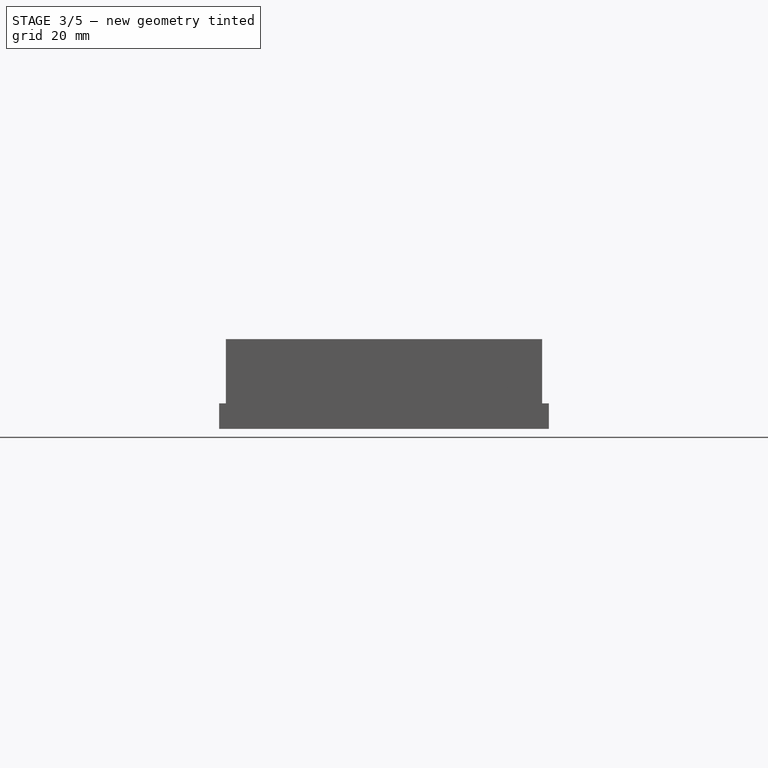
[diagram: stage 3 of 5 — front view after this stage's code; geometry added in this stage tinted green]
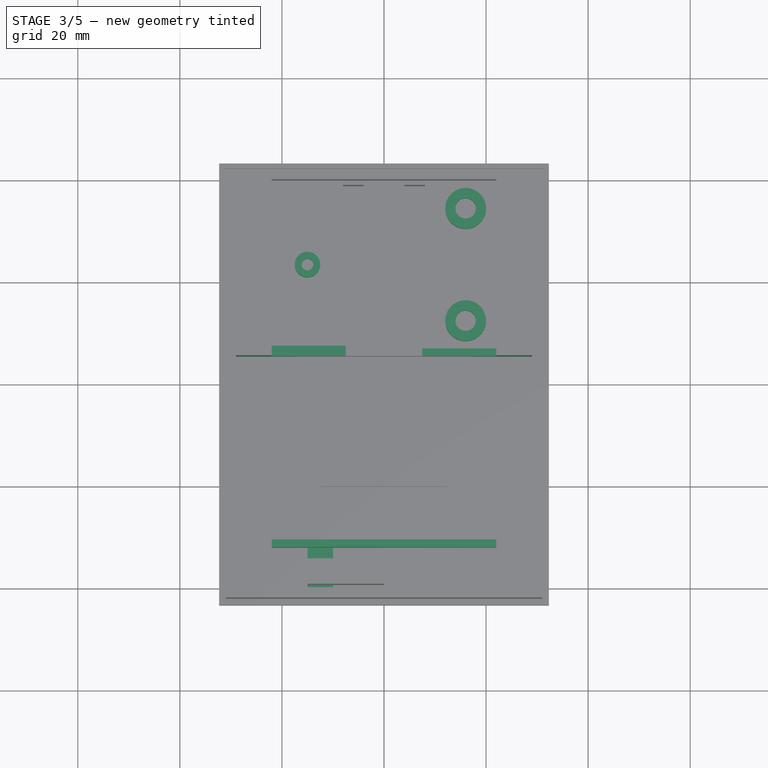
[diagram: stage 3 of 5 — top view after this stage's code; geometry added in this stage tinted green]
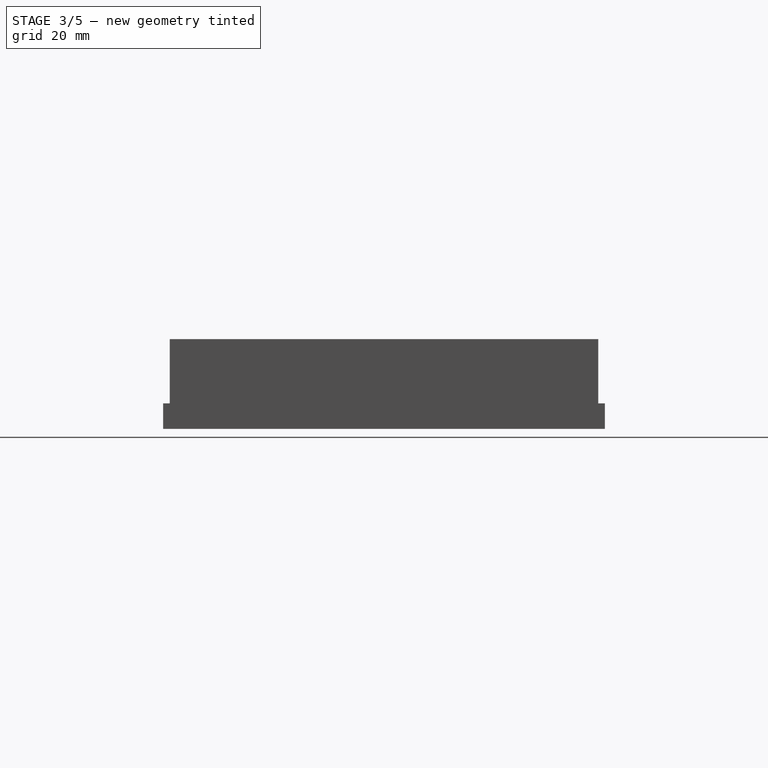
[diagram: stage 3 of 5 — right view after this stage's code; geometry added in this stage tinted green]
FEATURE [Sketcher::SketchObject] Sketch003  label="BoxPCBMountSketch"
  ExternalGeometry = -> [Sketch]
  FullyConstrained = true
  MapMode = 5
  Support = -> [XY_Plane]
  expr: Constraints[11] = <<RAKTrackerSheet>>.PCBMountHoleDistanceLength
  expr: Constraints[3] = <<RAKTrackerSheet>>.PCBMountHoleDistance
  expr: Constraints[5] = <<RAKTrackerSheet>>.PCBMountDia
  expr: Constraints[7] = <<RAKTrackerSheet>>.PCBMountHoleDia
  expr: Constraints[8] = <<RAKTrackerSheet>>.PCBMountFromSide
  expr: Constraints[9] = 15 mm
  sketch-geometry (7):
    g0: Circle CenterX=16 CenterY=34.478 CenterZ=0 NormalX=0 NormalY=0 NormalZ=1 AngleXU=0 Radius=4
    g1: Circle CenterX=16 CenterY=34.478 CenterZ=0 NormalX=0 NormalY=0 NormalZ=1 AngleXU=0 Radius=2
    g2: Circle CenterX=16 CenterY=12.478 CenterZ=0 NormalX=0 NormalY=0 NormalZ=1 AngleXU=0 Radius=4
    g3: Circle CenterX=16 CenterY=12.478 CenterZ=0 NormalX=0 NormalY=0 NormalZ=1 AngleXU=0 Radius=2
    g4: LineSegment StartX=-15 StartY=23.478 StartZ=0 EndX=16 EndY=23.478 EndZ=0
    g5: Circle CenterX=-15 CenterY=23.478 CenterZ=0 NormalX=0 NormalY=0 NormalZ=1 AngleXU=0 Radius=2.5
    g6: Circle CenterX=-15 CenterY=23.478 CenterZ=0 NormalX=0 NormalY=0 NormalZ=1 AngleXU=0 Radius=1.15
  constraints (17):
    c: Coincident(g1,g0)
    c: Coincident(g3,g2)
    c: Vertical(g0,g2)
    c: DistanceY(g2,g0) = 22
    c: Equal(g0,g2)
    c: Diameter(g0) = 8
    c: Equal(g1,g3)
    c: Diameter(g1) = 4
    c: DistanceY(g0,g-4) = 7.5
    c: DistanceX(g0,g-4) = 15
    c: Horizontal(g4)
    c: DistanceX(g4,g4) = 31
    c: Symmetric(g0,g2,g4)
    c: Coincident(g5,g4)
    c: Coincident(g6,g5)
    c: Diameter(g5) = 5
    c: Diameter(g6) = 2.3
FEATURE [PartDesign::Pad] Pad003  label="BoxPCBMount"
  BaseFeature = -> Pad002
  Direction = (0,0,1)
  Length = 6.1
  Length2 = 10
  Profile = -> Sketch003
  ReferenceAxis = -> Sketch003 [N_Axis]
  Type = 0
  expr: Length = <<RAKTrackerSheet>>.PCBMountHeight
FEATURE [Part::Feature] Part__Feature  label="Open CASCADE STEP translator 6.8 1.1.1.1"
  shape: bbox 35 x 30 x 1.01 mm, 101 faces (baked)
FEATURE [App::Part] Open_CASCADE_STEP_translator_6_8_1_1_1  label="Open CASCADE STEP translator 6.8 1.1.1"
  Group = -> [Part__Feature]
  Origin = -> Origin001
  Placement = pos=(0,0,-1.0098) rot=(0,0,1;0rad)
FEATURE [App::Part] Board
  Group = -> [Open_CASCADE_STEP_translator_6_8_1_1_1]
  Origin = -> Origin002
FEATURE [Part::Feature] Part__Feature001  label="Open CASCADE STEP translator 6.8 1.2.1.1"
  shape: bbox 8.301 x 3.726 x 7.901 mm, 1028 faces (baked)
FEATURE [Part::Feature] Part__Feature002  label="Open CASCADE STEP translator 6.8 1.2.1.2"
  shape: bbox 1.225 x 1.555 x 6.179 mm, 43 faces (baked)
FEATURE [Part::Feature] Part__Feature003  label="Open CASCADE STEP translator 6.8 1.2.1.3"
  shape: bbox 0.34 x 1.49 x 5.529 mm, 48 faces (baked)
FEATURE [Part::Feature] Part__Feature004  label="Open CASCADE STEP translator 6.8 1.2.1.4"
  shape: bbox 0.355 x 1.49 x 5.529 mm, 45 faces (baked)
FEATURE [Part::Feature] Part__Feature005  label="Open CASCADE STEP translator 6.8 1.2.1.5"
  shape: bbox 0.34 x 1.49 x 6.179 mm, 29 faces (baked)
FEATURE [Part::Feature] Part__Feature006  label="Open CASCADE STEP translator 6.8 1.2.1.6"
  shape: bbox 0.34 x 1.49 x 5.529 mm, 29 faces (baked)
FEATURE [Part::Feature] Part__Feature007  label="Open CASCADE STEP translator 6.8 1.2.1.7"
  shape: bbox 0.34 x 1.49 x 5.529 mm, 29 faces (baked)
FEATURE [Part::Feature] Part__Feature008  label="Open CASCADE STEP translator 6.8 1.2.1.8"
  shape: bbox 0.34 x 1.49 x 5.529 mm, 29 faces (baked)
FEATURE [Part::Feature] Part__Feature009  label="Open CASCADE STEP translator 6.8 1.2.1.9"
  shape: bbox 0.34 x 1.49 x 5.529 mm, 29 faces (baked)
FEATURE [Part::Feature] Part__Feature010  label="Open CASCADE STEP translator 6.8 1.2.1.10"
  shape: bbox 0.34 x 1.49 x 6.179 mm, 29 faces (baked)
FEATURE [Part::Feature] Part__Feature011  label="Open CASCADE STEP translator 6.8 1.2.1.11"
  shape: bbox 0.34 x 1.49 x 5.529 mm, 48 faces (baked)
FEATURE [Part::Feature] Part__Feature012  label="Open CASCADE STEP translator 6.8 1.2.1.12"
  shape: bbox 0.355 x 1.49 x 5.529 mm, 48 faces (baked)
FEATURE [Part::Feature] Part__Feature013  label="Open CASCADE STEP translator 6.8 1.2.1.13"
  shape: bbox 1.315 x 1.555 x 6.179 mm, 45 faces (baked)
FEATURE [Part::Feature] Part__Feature014  label="Open CASCADE STEP translator 6.8 1.2.1.14"
  shape: bbox 8.25 x 2.795 x 1.8 mm, 178 faces (baked)
FEATURE [Part::Feature] Part__Feature015  label="Open CASCADE STEP translator 6.8 1.2.1.15"
  shape: bbox 0.8024 x 0.015 x 0.08 mm, 6 faces (baked)
FEATURE [Part::Feature] Part__Feature016  label="Open CASCADE STEP translator 6.8 1.2.1.16"
  shape: bbox 8.942 x 3.745 x 8.001 mm, 393 faces (baked)
FEATURE [App::Part] USB_C_04_24PIN  label="USB-C-04-24PIN"
  Group = -> [Part__Feature001,Part__Feature002,Part__Feature003,Part__Feature004,Part__Feature005,Part__Feature006,Part__Feature007,Part__Feature008,Part__Feature009,Part__Feature010,Part__Feature011,Part__Feature012,Part__Feature013,Part__Feature014,Part__Feature015,Part__Feature016]
  Origin = -> Origin003
  Placement = pos=(-0.525543,22.4395,-0.599999) rot=(0.57735,-0.57735,-0.57735;2.0944rad)
FEATURE [App::Part] J1
  Group = -> [USB_C_04_24PIN]
  Origin = -> Origin004
FEATURE [Part::Feature] Part__Feature017  label="SOT-23-6"
  Placement = pos=(19.7296,18.377,-1.0098) rot=(-0.707107,0.707107,0;3.14159rad)
  shape: bbox 2.426 x 2.794 x 1.092 mm, 98 faces (baked)
FEATURE [App::Part] U3
  Group = -> [Part__Feature017]
  Origin = -> Origin005
FEATURE [Part::Feature] Part__Feature018  label="RES_1005-0402"
  Placement = pos=(17.4752,20.1422,-1.0098) rot=(-0.57735,-0.57735,0.57735;2.0944rad)
  shape: bbox 0.55 x 1.05 x 0.3 mm, 6 faces (baked)
FEATURE [Part::Feature] Part__Feature019  label="RES_1005-0403"
  Placement = pos=(17.4752,20.1422,-1.0098) rot=(-0.57735,-0.57735,0.57735;2.0944rad)
  shape: bbox 0.55 x 0.25 x 0.4 mm, 14 faces (baked)
FEATURE [Part::Feature] Part__Feature020  label="RES_1005-0404"
  Placement = pos=(17.4752,20.1422,-1.0098) rot=(-0.57735,-0.57735,0.57735;2.0944rad)
  shape: bbox 0.55 x 0.25 x 0.4 mm, 14 faces (baked)
FEATURE [Part::Feature] Part__Feature021  label="RES_1005-0405"
  Placement = pos=(17.4752,20.1422,-1.0098) rot=(-0.57735,-0.57735,0.57735;2.0944rad)
  shape: bbox 0.55 x 0.65 x 0.06 mm, 56 faces (baked)
FEATURE [App::Part] RES_1005_0402  label="RES_1005-0406"
  Group = -> [Part__Feature018,Part__Feature019,Part__Feature020,Part__Feature021]
  Origin = -> Origin006
FEATURE [App::Part] R11
  Group = -> [RES_1005_0402]
  Origin = -> Origin007
FEATURE [Part::Feature] Part__Feature022  label="RES_1005-0407"
  Placement = pos=(17.907,15.1892,-1.0098) rot=(0,0.707107,-0.707107;3.14159rad)
  shape: bbox 1.05 x 0.55 x 0.3 mm, 6 faces (baked)
FEATURE [Part::Feature] Part__Feature023  label="RES_1005-0408"
  Placement = pos=(17.907,15.1892,-1.0098) rot=(0,0.707107,-0.707107;3.14159rad)
  shape: bbox 0.25 x 0.55 x 0.4 mm, 14 faces (baked)
FEATURE [Part::Feature] Part__Feature024  label="RES_1005-0409"
  Placement = pos=(17.907,15.1892,-1.0098) rot=(0,0.707107,-0.707107;3.14159rad)
  shape: bbox 0.25 x 0.55 x 0.4 mm, 14 faces (baked)
FEATURE [Part::Feature] Part__Feature025  label="RES_1005-0410"
  Placement = pos=(17.907,15.1892,-1.0098) rot=(0,0.707107,-0.707107;3.14159rad)
  shape: bbox 0.65 x 0.55 x 0.06 mm, 56 faces (baked)
FEATURE [App::Part] RES_1005_0403  label="RES_1005-0411"
  Group = -> [Part__Feature022,Part__Feature023,Part__Feature024,Part__Feature025]
  Origin = -> Origin008
FEATURE [App::Part] R10
  Group = -> [RES_1005_0403]
  Origin = -> Origin009
FEATURE [Part::Feature] Part__Feature026  label="C0402"
  Placement = pos=(19.1595,20.2183,-1.2638) rot=(0.707107,0.707107,0;3.14159rad)
  shape: bbox 0.5 x 0.9958 x 0.5 mm, 76 faces (baked)
FEATURE [App::Part] C11
  Group = -> [Part__Feature026]
  Origin = -> Origin010
FEATURE [Part::Feature] Part__Feature027  label="C0403"
  Placement = pos=(15.3544,16.0861,-1.2638) rot=(0,1,0;3.14159rad)
  shape: bbox 0.9958 x 0.5 x 0.5 mm, 76 faces (baked)
FEATURE [App::Part] C10
  Group = -> [Part__Feature027]
  Origin = -> Origin011
FEATURE [Part::Feature] Part__Feature028  label="RES_1005-0412"
  Placement = pos=(7.7343,5.461,0) rot=(1,0,0;1.5708rad)
  shape: bbox 1.05 x 0.55 x 0.3 mm, 6 faces (baked)
FEATURE [Part::Feature] Part__Feature029  label="RES_1005-0413"
  Placement = pos=(7.7343,5.461,0) rot=(1,0,0;1.5708rad)
  shape: bbox 0.25 x 0.55 x 0.4 mm, 14 faces (baked)
FEATURE [Part::Feature] Part__Feature030  label="RES_1005-0414"
  Placement = pos=(7.7343,5.461,0) rot=(1,0,0;1.5708rad)
  shape: bbox 0.25 x 0.55 x 0.4 mm, 14 faces (baked)
FEATURE [Part::Feature] Part__Feature031  label="RES_1005-0415"
  Placement = pos=(7.7343,5.461,0) rot=(1,0,0;1.5708rad)
  shape: bbox 0.65 x 0.55 x 0.06 mm, 56 faces (baked)
FEATURE [App::Part] RES_1005_0404  label="RES_1005-0416"
  Group = -> [Part__Feature028,Part__Feature029,Part__Feature030,Part__Feature031]
  Origin = -> Origin012
FEATURE [App::Part] R3
  Group = -> [RES_1005_0404]
  Origin = -> Origin013
FEATURE [Part::Feature] Part__Feature032  label="smtso-m1_2-0_8-et"
  Placement = pos=(22.8001,10.85,-1.0098) rot=(1,0,0;3.14159rad)
  shape: bbox 2.5 x 2.5 x 1.8 mm, 9 faces (baked)
FEATURE [App::Part] M10
  Group = -> [Part__Feature032]
  Origin = -> Origin014
FEATURE [Part::Feature] Part__Feature033  label="WCSP6"
  Placement = pos=(14.8876,23.73,-1.0098) rot=(-0.707107,0.707107,0;3.14159rad)
  shape: bbox 1.113 x 1.226 x 0.625 mm, 21 faces (baked)
FEATURE [App::Part] U2
  Group = -> [Part__Feature033]
  Origin = -> Origin015
FEATURE [Part::Feature] Part__Feature034  label="SOT-23-5"
  Placement = pos=(11.2522,22.9616,-1.5178) rot=(-1,0,0;1.5708rad)
  shape: bbox 3 x 2.5 x 1.1 mm, 75 faces (baked)
FEATURE [App::Part] U1
  Group = -> [Part__Feature034]
  Origin = -> Origin016
FEATURE [Part::Feature] Part__Feature035  label="RES_1005-0417"
  Placement = pos=(9.8806,5.461,0) rot=(0,0.707107,0.707107;3.14159rad)
  shape: bbox 1.05 x 0.55 x 0.3 mm, 6 faces (baked)
FEATURE [Part::Feature] Part__Feature036  label="RES_1005-0418"
  Placement = pos=(9.8806,5.461,0) rot=(0,0.707107,0.707107;3.14159rad)
  shape: bbox 0.25 x 0.55 x 0.4 mm, 14 faces (baked)
FEATURE [Part::Feature] Part__Feature037  label="RES_1005-0419"
  Placement = pos=(9.8806,5.461,0) rot=(0,0.707107,0.707107;3.14159rad)
  shape: bbox 0.25 x 0.55 x 0.4 mm, 14 faces (baked)
FEATURE [Part::Feature] Part__Feature038  label="RES_1005-0420"
  Placement = pos=(9.8806,5.461,0) rot=(0,0.707107,0.707107;3.14159rad)
  shape: bbox 0.65 x 0.55 x 0.06 mm, 56 faces (baked)
FEATURE [App::Part] RES_1005_0405  label="RES_1005-0421"
  Group = -> [Part__Feature035,Part__Feature036,Part__Feature037,Part__Feature038]
  Origin = -> Origin017
FEATURE [App::Part] R9
  Group = -> [RES_1005_0405]
  Origin = -> Origin018
FEATURE [Part::Feature] Part__Feature039  label="RES_1005-0422"
  Placement = pos=(16.8783,25.2222,-1.0098) rot=(0,0.707107,-0.707107;3.14159rad)
  shape: bbox 1.05 x 0.55 x 0.3 mm, 6 faces (baked)
FEATURE [Part::Feature] Part__Feature040  label="RES_1005-0423"
  Placement = pos=(16.8783,25.2222,-1.0098) rot=(0,0.707107,-0.707107;3.14159rad)
  shape: bbox 0.25 x 0.55 x 0.4 mm, 14 faces (baked)
FEATURE [Part::Feature] Part__Feature041  label="RES_1005-0424"
  Placement = pos=(16.8783,25.2222,-1.0098) rot=(0,0.707107,-0.707107;3.14159rad)
  shape: bbox 0.25 x 0.55 x 0.4 mm, 14 faces (baked)
FEATURE [Part::Feature] Part__Feature042  label="RES_1005-0425"
  Placement = pos=(16.8783,25.2222,-1.0098) rot=(0,0.707107,-0.707107;3.14159rad)
  shape: bbox 0.65 x 0.55 x 0.06 mm, 56 faces (baked)
FEATURE [App::Part] RES_1005_0406  label="RES_1005-0426"
  Group = -> [Part__Feature039,Part__Feature040,Part__Feature041,Part__Feature042]
  Origin = -> Origin019
FEATURE [App::Part] R8
  Group = -> [RES_1005_0406]
  Origin = -> Origin020
FEATURE [Part::Feature] Part__Feature043  label="RES_1005-0427"
  Placement = pos=(5.1562,16.1798,-1.0098) rot=(0,0.707107,-0.707107;3.14159rad)
  shape: bbox 1.05 x 0.55 x 0.3 mm, 6 faces (baked)
FEATURE [Part::Feature] Part__Feature044  label="RES_1005-0428"
  Placement = pos=(5.1562,16.1798,-1.0098) rot=(0,0.707107,-0.707107;3.14159rad)
  shape: bbox 0.25 x 0.55 x 0.4 mm, 14 faces (baked)
FEATURE [Part::Feature] Part__Feature045  label="RES_1005-0429"
  Placement = pos=(5.1562,16.1798,-1.0098) rot=(0,0.707107,-0.707107;3.14159rad)
  shape: bbox 0.25 x 0.55 x 0.4 mm, 14 faces (baked)
FEATURE [Part::Feature] Part__Feature046  label="RES_1005-0430"
  Placement = pos=(5.1562,16.1798,-1.0098) rot=(0,0.707107,-0.707107;3.14159rad)
  shape: bbox 0.65 x 0.55 x 0.06 mm, 56 faces (baked)
FEATURE [App::Part] RES_1005_0407  label="RES_1005-0431"
  Group = -> [Part__Feature043,Part__Feature044,Part__Feature045,Part__Feature046]
  Origin = -> Origin021
FEATURE [App::Part] R7
  Group = -> [RES_1005_0407]
  Origin = -> Origin022
FEATURE [Part::Feature] Part__Feature047  label="RES_1005-0432"
  Placement = pos=(8.99161,20.1676,0) rot=(0.57735,-0.57735,-0.57735;2.0944rad)
  shape: bbox 0.55 x 1.05 x 0.3 mm, 6 faces (baked)
FEATURE [Part::Feature] Part__Feature048  label="RES_1005-0433"
  Placement = pos=(8.99161,20.1676,0) rot=(0.57735,-0.57735,-0.57735;2.0944rad)
  shape: bbox 0.55 x 0.25 x 0.4 mm, 14 faces (baked)
FEATURE [Part::Feature] Part__Feature049  label="RES_1005-0434"
  Placement = pos=(8.99161,20.1676,0) rot=(0.57735,-0.57735,-0.57735;2.0944rad)
  shape: bbox 0.55 x 0.25 x 0.4 mm, 14 faces (baked)
FEATURE [Part::Feature] Part__Feature050  label="RES_1005-0435"
  Placement = pos=(8.99161,20.1676,0) rot=(0.57735,-0.57735,-0.57735;2.0944rad)
  shape: bbox 0.55 x 0.65 x 0.06 mm, 56 faces (baked)
FEATURE [App::Part] RES_1005_0408  label="RES_1005-0436"
  Group = -> [Part__Feature047,Part__Feature048,Part__Feature049,Part__Feature050]
  Origin = -> Origin023
FEATURE [App::Part] R6
  Group = -> [RES_1005_0408]
  Origin = -> Origin024
FEATURE [Part::Feature] Part__Feature051  label="RES_1005-0437"
  Placement = pos=(16.8783,27.4828,-1.0098) rot=(-1,0,0;1.5708rad)
  shape: bbox 1.05 x 0.55 x 0.3 mm, 6 faces (baked)
FEATURE [Part::Feature] Part__Feature052  label="RES_1005-0438"
  Placement = pos=(16.8783,27.4828,-1.0098) rot=(-1,0,0;1.5708rad)
  shape: bbox 0.25 x 0.55 x 0.4 mm, 14 faces (baked)
FEATURE [Part::Feature] Part__Feature053  label="RES_1005-0439"
  Placement = pos=(16.8783,27.4828,-1.0098) rot=(-1,0,0;1.5708rad)
  shape: bbox 0.25 x 0.55 x 0.4 mm, 14 faces (baked)
FEATURE [Part::Feature] Part__Feature054  label="RES_1005-0440"
  Placement = pos=(16.8783,27.4828,-1.0098) rot=(-1,0,0;1.5708rad)
  shape: bbox 0.65 x 0.55 x 0.06 mm, 56 faces (baked)
FEATURE [App::Part] RES_1005_0409  label="RES_1005-0441"
  Group = -> [Part__Feature051,Part__Feature052,Part__Feature053,Part__Feature054]
  Origin = -> Origin025
FEATURE [App::Part] R5
  Group = -> [RES_1005_0409]
  Origin = -> Origin026
FEATURE [Part::Feature] Part__Feature055  label="RES_1005-0442"
  Placement = pos=(16.8783,26.3398,-1.0098) rot=(0,0.707107,-0.707107;3.14159rad)
  shape: bbox 1.05 x 0.55 x 0.3 mm, 6 faces (baked)
FEATURE [Part::Feature] Part__Feature056  label="RES_1005-0443"
  Placement = pos=(16.8783,26.3398,-1.0098) rot=(0,0.707107,-0.707107;3.14159rad)
  shape: bbox 0.25 x 0.55 x 0.4 mm, 14 faces (baked)
FEATURE [Part::Feature] Part__Feature057  label="RES_1005-0444"
  Placement = pos=(16.8783,26.3398,-1.0098) rot=(0,0.707107,-0.707107;3.14159rad)
  shape: bbox 0.25 x 0.55 x 0.4 mm, 14 faces (baked)
FEATURE [Part::Feature] Part__Feature058  label="RES_1005-0445"
  Placement = pos=(16.8783,26.3398,-1.0098) rot=(0,0.707107,-0.707107;3.14159rad)
  shape: bbox 0.65 x 0.55 x 0.06 mm, 56 faces (baked)
FEATURE [App::Part] RES_1005_0410  label="RES_1005-0446"
  Group = -> [Part__Feature055,Part__Feature056,Part__Feature057,Part__Feature058]
  Origin = -> Origin027
FEATURE [App::Part] R4
  Group = -> [RES_1005_0410]
  Origin = -> Origin028
FEATURE [Part::Feature] Part__Feature059  label="RES_1005-0447"
  Placement = pos=(9.06781,22.3012,-1.0098) rot=(-0.57735,0.57735,-0.57735;2.0944rad)
  shape: bbox 0.55 x 1.05 x 0.3 mm, 6 faces (baked)
FEATURE [Part::Feature] Part__Feature060  label="RES_1005-0448"
  Placement = pos=(9.06781,22.3012,-1.0098) rot=(-0.57735,0.57735,-0.57735;2.0944rad)
  shape: bbox 0.55 x 0.25 x 0.4 mm, 14 faces (baked)
FEATURE [Part::Feature] Part__Feature061  label="RES_1005-0449"
  Placement = pos=(9.06781,22.3012,-1.0098) rot=(-0.57735,0.57735,-0.57735;2.0944rad)
  shape: bbox 0.55 x 0.25 x 0.4 mm, 14 faces (baked)
FEATURE [Part::Feature] Part__Feature062  label="RES_1005-0450"
  Placement = pos=(9.06781,22.3012,-1.0098) rot=(-0.57735,0.57735,-0.57735;2.0944rad)
  shape: bbox 0.55 x 0.65 x 0.06 mm, 56 faces (baked)
FEATURE [App::Part] RES_1005_0411  label="RES_1005-0451"
  Group = -> [Part__Feature059,Part__Feature060,Part__Feature061,Part__Feature062]
  Origin = -> Origin029
FEATURE [App::Part] R2
  Group = -> [RES_1005_0411]
  Origin = -> Origin030
FEATURE [Part::Feature] Part__Feature063  label="RES_1005-0452"
  Placement = pos=(5.0038,9.0932,0) rot=(0.57735,-0.57735,-0.57735;2.0944rad)
  shape: bbox 0.55 x 1.05 x 0.3 mm, 6 faces (baked)
FEATURE [Part::Feature] Part__Feature064  label="RES_1005-0453"
  Placement = pos=(5.0038,9.0932,0) rot=(0.57735,-0.57735,-0.57735;2.0944rad)
  shape: bbox 0.55 x 0.25 x 0.4 mm, 14 faces (baked)
FEATURE [Part::Feature] Part__Feature065  label="RES_1005-0454"
  Placement = pos=(5.0038,9.0932,0) rot=(0.57735,-0.57735,-0.57735;2.0944rad)
  shape: bbox 0.55 x 0.25 x 0.4 mm, 14 faces (baked)
FEATURE [Part::Feature] Part__Feature066  label="RES_1005-0455"
  Placement = pos=(5.0038,9.0932,0) rot=(0.57735,-0.57735,-0.57735;2.0944rad)
  shape: bbox 0.55 x 0.65 x 0.06 mm, 56 faces (baked)
FEATURE [App::Part] RES_1005_0412  label="RES_1005-0456"
  Group = -> [Part__Feature063,Part__Feature064,Part__Feature065,Part__Feature066]
  Origin = -> Origin031
FEATURE [App::Part] R1
  Group = -> [RES_1005_0412]
  Origin = -> Origin032
FEATURE [Part::Feature] Part__Feature067  label="SOT-416"
  Placement = pos=(10.3124,7.2644,0.508) rot=(0.57735,0.57735,0.57735;2.0944rad)
  shape: bbox 1.6 x 1.6 x 0.8 mm, 41 faces (baked)
FEATURE [App::Part] Q2
  Group = -> [Part__Feature067]
  Origin = -> Origin033
FEATURE [Part::Feature] Part__Feature068  label="SOT-417"
  Placement = pos=(7.28981,7.2644,0.508) rot=(0.57735,0.57735,0.57735;2.0944rad)
  shape: bbox 1.6 x 1.6 x 0.8 mm, 41 faces (baked)
FEATURE [App::Part] Q1
  Group = -> [Part__Feature068]
  Origin = -> Origin034
FEATURE [Part::Feature] Part__Feature069  label="PH2-A_RGB15724527"
  Placement = pos=(9.05,26.8,0) rot=(0.57735,-0.57735,-0.57735;2.0944rad)
  shape: bbox 4.5 x 5.9 x 9.4 mm, 32 faces (baked)
FEATURE [App::Part] P2
  Group = -> [Part__Feature069]
  Origin = -> Origin035
FEATURE [Part::Feature] Part__Feature070  label="wf150-2pin"
  Placement = pos=(6.79991,2.34985,0) rot=(0.57735,-0.57735,-0.57735;2.0944rad)
  shape: bbox 3.8 x 4.5 x 7.5 mm, 38 faces (baked)
FEATURE [App::Part] P1
  Group = -> [Part__Feature070]
  Origin = -> Origin036
FEATURE [Part::Feature] Part__Feature071  label="smtso-m1_2-0_8-et001"
  Placement = pos=(30.1999,1.99995,0) rot=(0,0,1;3.14159rad)
  shape: bbox 2.5 x 2.5 x 1.8 mm, 9 faces (baked)
FEATURE [App::Part] M9
  Group = -> [Part__Feature071]
  Origin = -> Origin037
FEATURE [Part::Feature] Part__Feature072  label="smtso-m1_2-0_8-et002"
  Placement = pos=(13.7999,1.99995,0) rot=(0,0,1;3.14159rad)
  shape: bbox 2.5 x 2.5 x 1.8 mm, 9 faces (baked)
FEATURE [App::Part] M8
  Group = -> [Part__Feature072]
  Origin = -> Origin038
FEATURE [Part::Feature] Part__Feature073  label="smtso-m1_2-0_8-et003"
  Placement = pos=(13.7999,28,0) rot=(0,0,1;3.14159rad)
  shape: bbox 2.5 x 2.5 x 1.8 mm, 9 faces (baked)
FEATURE [App::Part] M6
  Group = -> [Part__Feature073]
  Origin = -> Origin039
FEATURE [Part::Feature] Part__Feature074  label="smtso-m1_2-0_8-et004"
  Placement = pos=(30.1999,28,0) rot=(0,0,1;3.14159rad)
  shape: bbox 2.5 x 2.5 x 1.8 mm, 9 faces (baked)
FEATURE [App::Part] M5
  Group = -> [Part__Feature074]
  Origin = -> Origin040
FEATURE [Part::Feature] Part__Feature075  label="smtso-m1_2-0_8-et005"
  Placement = pos=(22.8001,21.85,-1.0098) rot=(1,0,0;3.14159rad)
  shape: bbox 2.5 x 2.5 x 1.8 mm, 9 faces (baked)
FEATURE [App::Part] M3
  Group = -> [Part__Feature075]
  Origin = -> Origin041
FEATURE [Part::Feature] Part__Feature076  label="smtso-m1_2-0_8-et006"
  Placement = pos=(9.80012,10.85,-1.0098) rot=(1,0,0;3.14159rad)
  shape: bbox 2.5 x 2.5 x 1.8 mm, 9 faces (baked)
FEATURE [App::Part] M2
  Group = -> [Part__Feature076]
  Origin = -> Origin042
FEATURE [Part::Feature] Part__Feature077  label="L0806"
  Placement = pos=(17.1449,22.8345,-1.0098) rot=(-0.707107,0.707107,0;3.14159rad)
  shape: bbox 1.5 x 0.9 x 1.5 mm, 10 faces (baked)
FEATURE [Part::Feature] Part__Feature078  label="L0807"
  Placement = pos=(17.1449,22.8345,-1.0098) rot=(-0.707107,0.707107,0;3.14159rad)
  shape: bbox 1.6 x 0.5557 x 1.6 mm, 38 faces (baked)
FEATURE [Part::Feature] Part__Feature079  label="L0808"
  Placement = pos=(17.1449,22.8345,-1.0098) rot=(-0.707107,0.707107,0;3.14159rad)
  shape: bbox 1.6 x 0.5557 x 1.6 mm, 38 faces (baked)
FEATURE [App::Part] L0806  label="L0809"
  Group = -> [Part__Feature077,Part__Feature078,Part__Feature079]
  Origin = -> Origin043
FEATURE [App::Part] L1
  Group = -> [L0806]
  Origin = -> Origin044
FEATURE [Part::Feature] Part__Feature080  label="axe524127"
  Placement = pos=(30.3001,20.1,-1.0098) rot=(-0.707107,0.707107,0;3.14159rad)
  shape: bbox 2.5 x 7.3 x 0.7701 mm, 974 faces (baked)
FEATURE [App::Part] J5
  Group = -> [Part__Feature080]
  Origin = -> Origin045
FEATURE [Part::Feature] Part__Feature081  label="axe524128"
  Placement = pos=(30.3001,9.10001,-1.0098) rot=(-0.707107,0.707107,0;3.14159rad)
  shape: bbox 2.5 x 7.3 x 0.7701 mm, 974 faces (baked)
FEATURE [App::Part] J4
  Group = -> [Part__Feature081]
  Origin = -> Origin046
FEATURE [Part::Feature] Part__Feature082  label="axe540127"
  Placement = pos=(22,28.2001,0) rot=(0,0,1;3.14159rad)
  shape: bbox 10.5 x 2.5 x 0.7701 mm, 1422 faces (baked)
FEATURE [App::Part] J3
  Group = -> [Part__Feature082]
  Origin = -> Origin047
FEATURE [Part::Feature] Part__Feature083  label="ts-1806b"
  Placement = pos=(1.38036,10.3103,0) rot=(0.57735,-0.57735,-0.57735;2.0944rad)
  shape: bbox 3.5 x 4.5 x 2.1 mm, 21 faces (baked)
FEATURE [App::Part] J2
  Group = -> [Part__Feature083]
  Origin = -> Origin048
FEATURE [Part::Feature] Part__Feature084  label="LED0603"
  Placement = pos=(3.0988,0.685806,0) rot=(0,0,1;3.14159rad)
  shape: bbox 1.62 x 0.8 x 0.6 mm, 51 faces (baked)
FEATURE [App::Part] D6
  Group = -> [Part__Feature084]
  Origin = -> Origin049
FEATURE [Part::Feature] Part__Feature085  label="LED0604"
  Placement = pos=(0.711197,2.159,0) rot=(0,0,-1;1.5708rad)
  shape: bbox 0.8 x 1.62 x 0.6 mm, 51 faces (baked)
FEATURE [App::Part] D5
  Group = -> [Part__Feature085]
  Origin = -> Origin050
FEATURE [Part::Feature] Part__Feature086  label="SOD-123F"
  Placement = pos=(9.65201,16.8148,-1.0098) rot=(0.707107,0.707107,0;3.14159rad)
  shape: bbox 3.751 x 1.701 x 1.211 mm, 79 faces, 0 solids (baked)
FEATURE [App::Part] D4
  Group = -> [Part__Feature086]
  Origin = -> Origin051
FEATURE [Part::Feature] Part__Feature087  label="SOD-123"
  Placement = pos=(13.7905,19.1703,-1.5098) rot=(-0.707107,0.707107,0;3.14159rad)
  shape: bbox 1.7 x 3.85 x 1.462 mm, 217 faces (baked)
FEATURE [App::Part] D3
  Group = -> [Part__Feature087]
  Origin = -> Origin052
FEATURE [Part::Feature] Part__Feature088  label="SOD-123F001"
  Placement = pos=(9.65201,19.685,-1.0098) rot=(0.707107,0.707107,0;3.14159rad)
  shape: bbox 3.751 x 1.701 x 1.211 mm, 79 faces, 0 solids (baked)
FEATURE [App::Part] D2
  Group = -> [Part__Feature088]
  Origin = -> Origin053
FEATURE [Part::Feature] Part__Feature089  label="LED0605"
  Placement = pos=(0.711197,5.84199,0) rot=(0,0,1;1.5708rad)
  shape: bbox 0.8 x 1.62 x 0.6 mm, 51 faces (baked)
FEATURE [App::Part] D1
  Group = -> [Part__Feature089]
  Origin = -> Origin054
FEATURE [Part::Feature] Part__Feature090  label="C0404"
  Placement = pos=(5.24992,11.5696,0.254) rot=(0,0,1;1.5708rad)
  shape: bbox 0.5 x 0.9958 x 0.5 mm, 76 faces (baked)
FEATURE [App::Part] C9
  Group = -> [Part__Feature090]
  Origin = -> Origin055
FEATURE [Part::Feature] Part__Feature091  label="C0405"
  Placement = pos=(13.1905,23.9902,-1.2638) rot=(0.707107,0.707107,0;3.14159rad)
  shape: bbox 0.5 x 0.9958 x 0.5 mm, 76 faces (baked)
FEATURE [App::Part] C8
  Group = -> [Part__Feature091]
  Origin = -> Origin056
FEATURE [Part::Feature] Part__Feature092  label="C0406"
  Placement = pos=(15.3542,17.6705,-1.2638) rot=(1,0,0;3.14159rad)
  shape: bbox 0.9958 x 0.5 x 0.5 mm, 76 faces (baked)
FEATURE [App::Part] C7
  Group = -> [Part__Feature092]
  Origin = -> Origin057
FEATURE [Part::Feature] Part__Feature093  label="C0407"
  Placement = pos=(15.3542,18.7627,-1.2638) rot=(1,0,0;3.14159rad)
  shape: bbox 0.9958 x 0.5 x 0.5 mm, 76 faces (baked)
FEATURE [App::Part] C6
  Group = -> [Part__Feature093]
  Origin = -> Origin058
FEATURE [Part::Feature] Part__Feature094  label="C0408"
  Placement = pos=(15.3542,19.8295,-1.2638) rot=(1,0,0;3.14159rad)
  shape: bbox 0.9958 x 0.5 x 0.5 mm, 76 faces (baked)
FEATURE [App::Part] C5
  Group = -> [Part__Feature094]
  Origin = -> Origin059
FEATURE [Part::Feature] Part__Feature095  label="C0409"
  Placement = pos=(15.3542,20.8963,-1.2638) rot=(1,0,0;3.14159rad)
  shape: bbox 0.9958 x 0.5 x 0.5 mm, 76 faces (baked)
FEATURE [App::Part] C4
  Group = -> [Part__Feature095]
  Origin = -> Origin060
FEATURE [Part::Feature] Part__Feature096  label="C0410"
  Placement = pos=(13.6827,21.9584,-1.2638) rot=(-0.707107,0.707107,0;3.14159rad)
  shape: bbox 0.5 x 0.9958 x 0.5 mm, 76 faces (baked)
FEATURE [App::Part] C3
  Group = -> [Part__Feature096]
  Origin = -> Origin061
FEATURE [Part::Feature] Part__Feature097  label="C0411"
  Placement = pos=(10.4061,26.3526,-1.2638) rot=(-0.707107,0.707107,0;3.14159rad)
  shape: bbox 0.5 x 0.9958 x 0.5 mm, 76 faces (baked)
FEATURE [App::Part] C2
  Group = -> [Part__Feature097]
  Origin = -> Origin062
FEATURE [Part::Feature] Part__Feature098  label="C0412"
  Placement = pos=(11.0061,26.3524,-1.2638) rot=(0.707107,0.707107,0;3.14159rad)
  shape: bbox 0.5 x 0.9958 x 0.5 mm, 76 faces (baked)
FEATURE [App::Part] C1
  Group = -> [Part__Feature098]
  Origin = -> Origin063
FEATURE [App::Part] PCB
  Group = -> [Board,J1,U3,R11,R10,C11,C10,R3,M10,U2,U1,R9,R8,R7,R6,R5,R4,R2,R1,Q2,Q1,P2,P1,M9,M8,M6,M5,M3,M2,L1,J5,J4,J3,J2,D6,D5,D4,D3,D2,D1,C9,C8,C7,C6,C5,C4,C3,C2,C1]
  Origin = -> Origin064
  Placement = pos=(19,38,8) rot=(0,0,-1;3.14159rad)
FEATURE [Sketcher::SketchObject] Sketch004  label="BoxAntMountSketch"
  ExternalGeometry = -> [Sketch001]
  FullyConstrained = true
  MapMode = 5
  Placement = pos=(0,0,0) rot=(0.57735,0.57735,0.57735;2.0944rad)
  Support = -> [YZ_Plane]
  expr: Constraints[13] = <<RAKTrackerSheet>>.BoxFloorHeight + <<RAKTrackerSheet>>.AntHeight
  expr: Constraints[14] = <<RAKTrackerSheet>>.AntWallThickness
  expr: Constraints[16] = <<RAKTrackerSheet>>.AntWidth
  expr: Constraints[17] = <<RAKTrackerSheet>>.AntWallThickness
  sketch-geometry (6):
    g0: LineSegment StartX=-30.978 StartY=0 StartZ=0 EndX=-30.978 EndY=4.1 EndZ=0
    g1: LineSegment StartX=-30.978 StartY=4.1 StartZ=0 EndX=-39.978 EndY=4.1 EndZ=0
    g2: LineSegment StartX=-39.978 StartY=4.1 StartZ=0 EndX=-39.978 EndY=3.1 EndZ=0
    g3: LineSegment StartX=-31.978 StartY=3.1 StartZ=0 EndX=-39.978 EndY=3.1 EndZ=0
    g4: LineSegment StartX=-31.978 StartY=3.1 StartZ=0 EndX=-31.978 EndY=0 EndZ=0
    g5: LineSegment StartX=-31.978 StartY=0 StartZ=0 EndX=-30.978 EndY=0 EndZ=0
  constraints (18):
    c: PointOnObject(g0,g-1)
    c: Vertical(g0)
    c: Horizontal(g1)
    c: Vertical(g2)
    c: Coincident(g3,g2)
    c: Horizontal(g3)
    c: Coincident(g4,g3)
    c: PointOnObject(g4,g-1)
    c: Vertical(g4)
    c: Coincident(g5,g0)
    c: Coincident(g5,g4)
    c: Coincident(g1,g0)
    c: Coincident(g1,g2)
    c: DistanceY(g-3,g2) = 3.1
    c: DistanceY(g2,g2) = 1
    c: Vertical(g-4,g2)
    c: DistanceX(g-4,g4) = 8
    c: DistanceX(g5,g5) = 1
FEATURE [PartDesign::Pad] Pad004  label="BoxAntMount"
  BaseFeature = -> Pad003
  Direction = (1,-2e-16,3e-16)
  Length = 15
  Length2 = -10
  Profile = -> Sketch004
  ReferenceAxis = -> Sketch004 [N_Axis]
  Reversed = true
  Type = 4
FEATURE [Sketcher::SketchObject] Sketch005  label="BatBoxHolderSketch"
  AttachmentOffset = pos=(0,0,1.6) rot=(0,0,1;0rad)
  ExternalGeometry = -> [Sketch001,Sketch]
  FullyConstrained = true
  MapMode = 5
  Placement = pos=(0,0,1.6) rot=(0,0,1;0rad)
  Support = -> [XY_Plane]
  expr: .AttachmentOffset.Base.z = <<RAKTrackerSheet>>.BoxFloorHeight
  expr: Constraints[20] = <<RAKTrackerSheet>>.BoxInternalWallThickness
  expr: Constraints[21] = <<RAKTrackerSheet>>.BoxBatSpace
  expr: Constraints[4] = <<RAKTrackerSheet>>.BoxInternalWallThickness
  expr: Constraints[6] = <<RAKTrackerSheet>>.PCBWidthOuter
  sketch-geometry (12):
    g0: LineSegment StartX=29 StartY=6.978 StartZ=0 EndX=29 EndY=5.478 EndZ=0
    g1: LineSegment StartX=-29 StartY=5.478 StartZ=0 EndX=-29 EndY=7.5 EndZ=0
    g2: LineSegment StartX=-29 StartY=-30.478 StartZ=0 EndX=29 EndY=-30.478 EndZ=0
    g3: LineSegment StartX=29 StartY=-30.478 StartZ=0 EndX=29 EndY=-31.978 EndZ=0
    g4: LineSegment StartX=29 StartY=-31.978 StartZ=0 EndX=-29 EndY=-31.978 EndZ=0
    g5: LineSegment StartX=-29 StartY=-31.978 StartZ=0 EndX=-29 EndY=-30.478 EndZ=0
    g6: LineSegment StartX=-29 StartY=7.5 StartZ=0 EndX=-7.5 EndY=7.5 EndZ=0
    g7: LineSegment StartX=-7.5 StartY=5.478 StartZ=0 EndX=-29 EndY=5.478 EndZ=0
    g8: LineSegment StartX=7.5 StartY=6.978 StartZ=0 EndX=29 EndY=6.978 EndZ=0
    g9: LineSegment StartX=29 StartY=5.478 StartZ=0 EndX=7.5 EndY=5.478 EndZ=0
    g10: LineSegment StartX=7.5 StartY=6.978 StartZ=0 EndX=7.5 EndY=5.478 EndZ=0
    g11: LineSegment StartX=-7.5 StartY=5.478 StartZ=0 EndX=-7.5 EndY=7.5 EndZ=0
  constraints (36):
    c: PointOnObject(g8,g-4)
    c: Coincident(g9,g0)
    c: Coincident(g1,g7)
    c: Coincident(g1,g6)
    c: DistanceY(g0,g0) = 1.5
    c: Coincident(g0,g8)
    c: DistanceY(g8,g-5) = 33
    c: Vertical(g1)
    c: Vertical(g0)
    c: PointOnObject(g6,g-3)
    c: Coincident(g2,g3)
    c: Coincident(g3,g4)
    c: Coincident(g4,g5)
    c: Coincident(g5,g2)
    c: Horizontal(g2)
    c: Horizontal(g4)
    c: Vertical(g3)
    c: Vertical(g5)
    c: PointOnObject(g2,g-3)
    c: PointOnObject(g3,g-4)
    c: DistanceY(g3,g3) = 1.5
    c: DistanceY(g2,g0) = 35.956
    c: Horizontal(g6)
    c: Horizontal(g7)
    c: Horizontal(g8)
    c: Horizontal(g9)
    c: Coincident(g10,g8)
    c: Coincident(g10,g9)
    c: Coincident(g11,g7)
    c: Coincident(g11,g6)
    c: Vertical(g11)
    c: Horizontal(g7,g9)
    c: Vertical(g10)
    c: PointOnObject(g9,g-7)
    c: PointOnObject(g7,g-6)
    c: Horizontal(g6,g-7)
FEATURE [PartDesign::Pad] Pad005  label="BatBoxHolder"
  BaseFeature = -> Pad004
  Direction = (0,0,1)
  Length = 8.06667
  Length2 = 10
  Profile = -> Sketch005
  ReferenceAxis = -> Sketch005 [N_Axis]
  Type = 0
  expr: Length = <<RAKTrackerSheet>>.BatHolderHeight / 3 * 2
FEATURE [PartDesign::Pocket] Pocket006  label="BatBoxHolderGap"
  BaseFeature = -> Pad005
  Direction = (0,0,-1)
  Length = 17.6
  Length2 = 5
  Profile = -> Sketch010
  ReferenceAxis = -> Sketch010 [N_Axis]
  Reversed = true
  Type = 0
  expr: Length = <<RAKTrackerSheet>>.BoxHeight
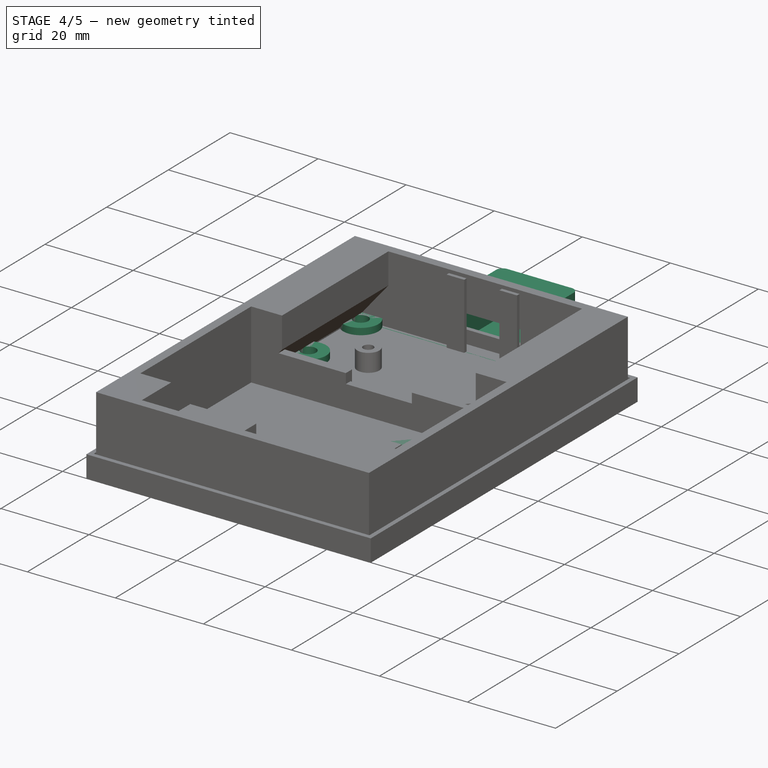
[diagram: stage 4 of 5 — iso view after this stage's code; geometry added in this stage tinted green]
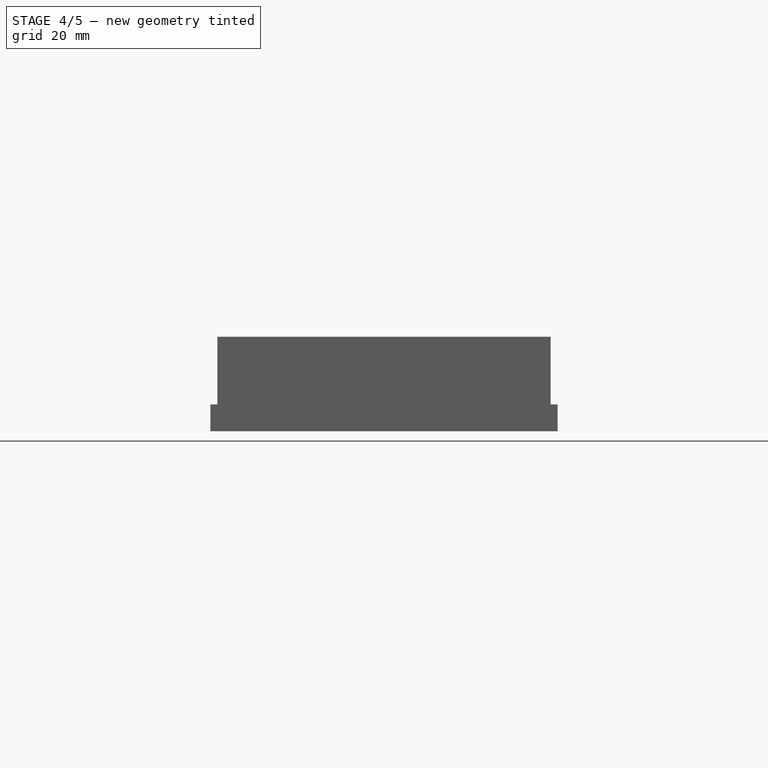
[diagram: stage 4 of 5 — front view after this stage's code; geometry added in this stage tinted green]
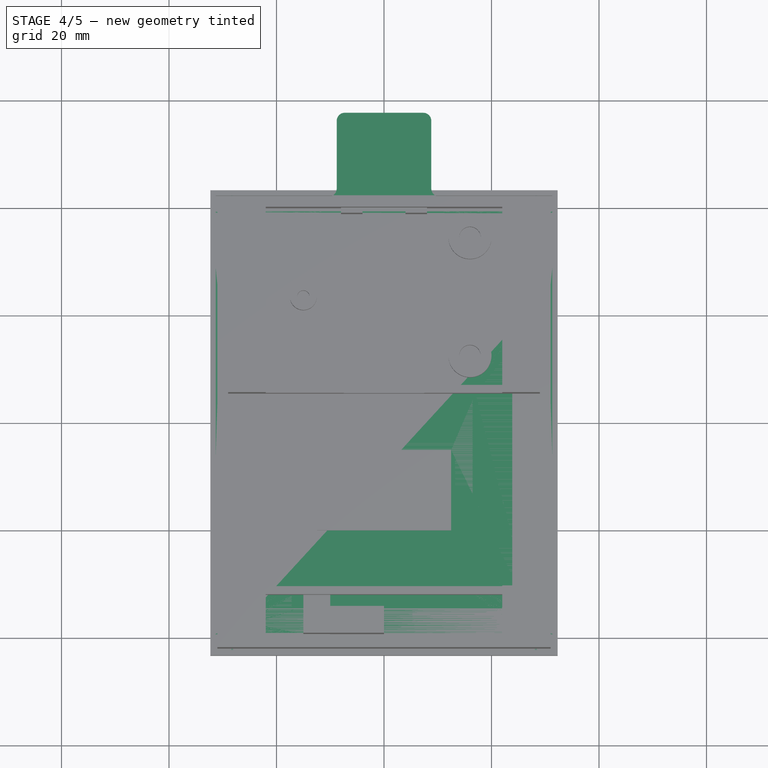
[diagram: stage 4 of 5 — top view after this stage's code; geometry added in this stage tinted green]
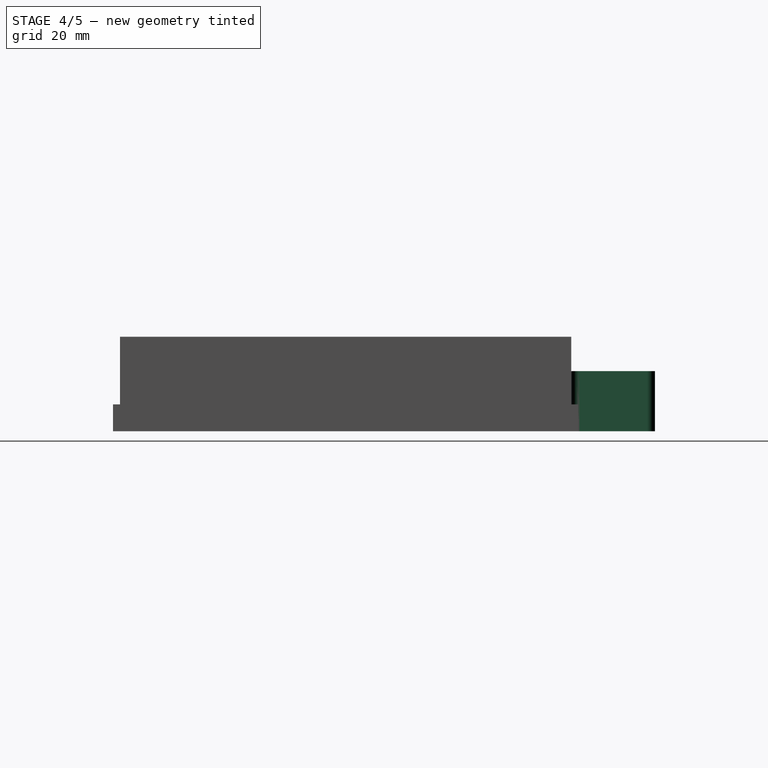
[diagram: stage 4 of 5 — right view after this stage's code; geometry added in this stage tinted green]
FEATURE [Sketcher::SketchObject] Sketch019  label="BraceBaseSketch"
  FullyConstrained = true
  MapMode = 5
  Support = -> [XY_Plane068]
  expr: Constraints[27] = <<RAKTrackerSheet>>.StrapHolderDia / 2
  expr: Constraints[6] = <<RAKTrackerSheet>>.LidWidth
  expr: Constraints[7] = <<RAKTrackerSheet>>.LidLength
  sketch-geometry (13):
    g0: LineSegment StartX=-32.3 StartY=-39.278 StartZ=0 EndX=-32.3 EndY=39.278 EndZ=0
    g1: LineSegment StartX=-28.3 StartY=43.278 StartZ=0 EndX=28.3 EndY=43.278 EndZ=0
    g2: LineSegment StartX=32.3 StartY=39.278 StartZ=0 EndX=32.3 EndY=-39.278 EndZ=0
    g3: LineSegment StartX=28.3 StartY=-43.278 StartZ=0 EndX=-28.3 EndY=-43.278 EndZ=0
    g4: GeomPoint X=0 Y=0 Z=0
    g5: ArcOfCircle CenterX=-28.3 CenterY=39.278 CenterZ=0 NormalX=0 NormalY=0 NormalZ=1 AngleXU=0 Radius=4 StartAngle=1.5708 EndAngle=3.14159
    g6: GeomPoint X=-32.3 Y=43.278 Z=0
    g7: ArcOfCircle CenterX=28.3 CenterY=39.278 CenterZ=0 NormalX=0 NormalY=0 NormalZ=1 AngleXU=0 Radius=4 StartAngle=0 EndAngle=1.5708
    g8: GeomPoint X=32.3 Y=43.278 Z=0
    g9: ArcOfCircle CenterX=-28.3 CenterY=-39.278 CenterZ=0 NormalX=0 NormalY=0 NormalZ=1 AngleXU=0 Radius=4 StartAngle=3.14159 EndAngle=4.71239
    g10: GeomPoint X=-32.3 Y=-43.278 Z=0
    g11: ArcOfCircle CenterX=28.3 CenterY=-39.278 CenterZ=0 NormalX=0 NormalY=0 NormalZ=1 AngleXU=0 Radius=4 StartAngle=4.71239 EndAngle=6.28319
    g12: GeomPoint X=32.3 Y=-43.278 Z=0
  constraints (28):
    c: Horizontal(g1)
    c: Horizontal(g3)
    c: Vertical(g0)
    c: Vertical(g2)
    c: Symmetric(g8,g10,g4)
    c: Coincident(g4,g-1)
    c: DistanceX(g6,g8) = 64.6
    c: DistanceY(g12,g8) = 86.556
    c: PointOnObject(g6,g0)
    c: PointOnObject(g6,g1)
    c: Tangent(g0,g5) = 1.5708
    c: Tangent(g1,g5) = 1.5708
    c: PointOnObject(g8,g1)
    c: PointOnObject(g8,g2)
    c: Tangent(g1,g7) = 1.5708
    c: Tangent(g2,g7) = 1.5708
    c: PointOnObject(g10,g0)
    c: PointOnObject(g10,g3)
    c: Tangent(g0,g9) = 1.5708
    c: Tangent(g3,g9) = 1.5708
    c: PointOnObject(g12,g3)
    c: PointOnObject(g12,g2)
    c: Tangent(g3,g11) = 1.5708
    c: Tangent(g2,g11) = 1.5708
    c: Equal(g5,g7)
    c: Equal(g5,g11)
    c: Equal(g5,g9)
    c: Radius(g5) = 4
FEATURE [PartDesign::Pad] Pad013  label="BraceBase"
  Direction = (0,0,1)
  Length = 2
  Length2 = 10
  Profile = -> Sketch019
  ReferenceAxis = -> Sketch019 [N_Axis]
  Type = 0
  expr: Length = 2 mm
FEATURE [Sketcher::SketchObject] Sketch020  label="BraceOffsetSketch"
  FullyConstrained = true
  MapMode = 5
  Support = -> [XY_Plane068]
  expr: Constraints[10] = <<RAKTrackerSheet>>.BoxWidth
  expr: Constraints[11] = <<RAKTrackerSheet>>.BoxLength
  expr: Constraints[19] = <<RAKTrackerSheet>>.StrapHoleDistance
  expr: Constraints[25] = <<RAKTrackerSheet>>.StrapHolderDia
  expr: Constraints[26] = (<<RAKTrackerSheet>>.BoxRimWidth + <<RAKTrackerSheet>>.BoxWallThicknessLength) / 2
  expr: Constraints[27] = (<<RAKTrackerSheet>>.BoxRimWidth + <<RAKTrackerSheet>>.BoxWallThicknessLength) / 2
  expr: Constraints[28] = (<<RAKTrackerSheet>>.BoxRimWidth + <<RAKTrackerSheet>>.BoxWallThicknessLength) / 2
  expr: Constraints[29] = (<<RAKTrackerSheet>>.BoxRimWidth + <<RAKTrackerSheet>>.BoxWallThicknessLength) / 2
  sketch-geometry (11):
    g0: LineSegment StartX=-31 StartY=-41.978 StartZ=0 EndX=-31 EndY=41.978 EndZ=0
    g1: LineSegment StartX=-31 StartY=41.978 StartZ=0 EndX=31 EndY=41.978 EndZ=0
    g2: LineSegment StartX=31 StartY=41.978 StartZ=0 EndX=31 EndY=-41.978 EndZ=0
    g3: LineSegment StartX=31 StartY=-41.978 StartZ=0 EndX=-31 EndY=-41.978 EndZ=0
    g4: GeomPoint X=0 Y=0 Z=0
    g5: Circle CenterX=-26.5 CenterY=37.478 CenterZ=0 NormalX=0 NormalY=0 NormalZ=1 AngleXU=0 Radius=4
    g6: Circle CenterX=26.5 CenterY=37.478 CenterZ=0 NormalX=0 NormalY=0 NormalZ=1 AngleXU=0 Radius=4
    g7: Circle CenterX=26.5 CenterY=20.522 CenterZ=0 NormalX=0 NormalY=0 NormalZ=1 AngleXU=0 Radius=4
    g8: Circle CenterX=26.5 CenterY=-37.478 CenterZ=0 NormalX=0 NormalY=0 NormalZ=1 AngleXU=0 Radius=4
    g9: Circle CenterX=-26.5 CenterY=-37.478 CenterZ=0 NormalX=0 NormalY=0 NormalZ=1 AngleXU=0 Radius=4
    g10: Circle CenterX=-26.5 CenterY=20.522 CenterZ=0 NormalX=0 NormalY=0 NormalZ=1 AngleXU=0 Radius=4
  constraints (30):
    c: Coincident(g0,g1)
    c: Coincident(g1,g2)
    c: Coincident(g2,g3)
    c: Coincident(g3,g0)
    c: Horizontal(g1)
    c: Horizontal(g3)
    c: Vertical(g0)
    c: Vertical(g2)
    c: Symmetric(g1,g0,g4)
    c: Coincident(g4,g-1)
    c: DistanceX(g1,g1) = 62
    c: DistanceY(g2,g2) = 83.956
    c: Horizontal(g5,g6)
    c: Horizontal(g10,g7)
    c: Horizontal(g9,g8)
    c: Vertical(g5,g10)
    c: Vertical(g10,g9)
    c: Vertical(g6,g7)
    c: Vertical(g7,g8)
    c: Distance(g9,g10) = 58
    c: Equal(g5,g10)
    c: Equal(g5,g9)
    c: Equal(g5,g8)
    c: Equal(g5,g7)
    c: Equal(g5,g6)
    c: Diameter(g5) = 8
    c: DistanceX(g6,g1) = 4.5
    c: DistanceY(g6,g1) = 4.5
    c: DistanceY(g0,g9) = 4.5
    c: DistanceX(g0,g9) = 4.5
FEATURE [PartDesign::Pad] Pad014  label="BraceOffset"
  BaseFeature = -> Pad013
  Direction = (0,0,1)
  Length = 3.5
  Length2 = 10
  Profile = -> Sketch020
  ReferenceAxis = -> Sketch020 [N_Axis]
  Type = 0
  expr: Length = 3.5 mm
FEATURE [PartDesign::Hole] Hole
  BaseFeature = -> Pad014
  CustomThreadClearance = 0
  Depth = 25
  DepthType = 0
  Diameter = 3.4
  DrillForDepth = false
  DrillPoint = 1
  DrillPointAngle = 118
  HoleCutCountersinkAngle = 90
  HoleCutCustomValues = false
  HoleCutDepth = 0
  HoleCutDiameter = 6.7
  HoleCutType = 4
  ModelThread = false
  Profile = -> Sketch020
  Reversed = true
  Tapered = false
  TaperedAngle = 90
  ThreadClass = 0
  ThreadDepth = 25
  ThreadDepthType = 0
  ThreadDirection = 0
  ThreadFit = 0
  ThreadSize = 9
  ThreadType = 2
  Threaded = false
  UseCustomThreadClearance = false
FEATURE [PartDesign::Pad] Pad008  label="BoxGPSMount1"
  BaseFeature = -> Pocket006
  Direction = (0,0,1)
  Length = 11.2
  Length2 = 10
  Profile = -> Sketch011
  ReferenceAxis = -> Sketch011 [N_Axis]
  Type = 0
  expr: Length = <<RAKTrackerSheet>>.GPSHeight + 2 * <<RAKTrackerSheet>>.GPSMountWallThickness
FEATURE [PartDesign::Pocket] Pocket003  label="BoxGPSMount2"
  BaseFeature = -> Pad008
  Direction = (0,-1,-2e-16)
  Length = -16
  Length2 = 5
  Profile = -> Sketch012
  ReferenceAxis = -> Sketch012 [N_Axis]
  Type = 0
  expr: Length = <<RAKTrackerSheet>>.GPSLength * -1
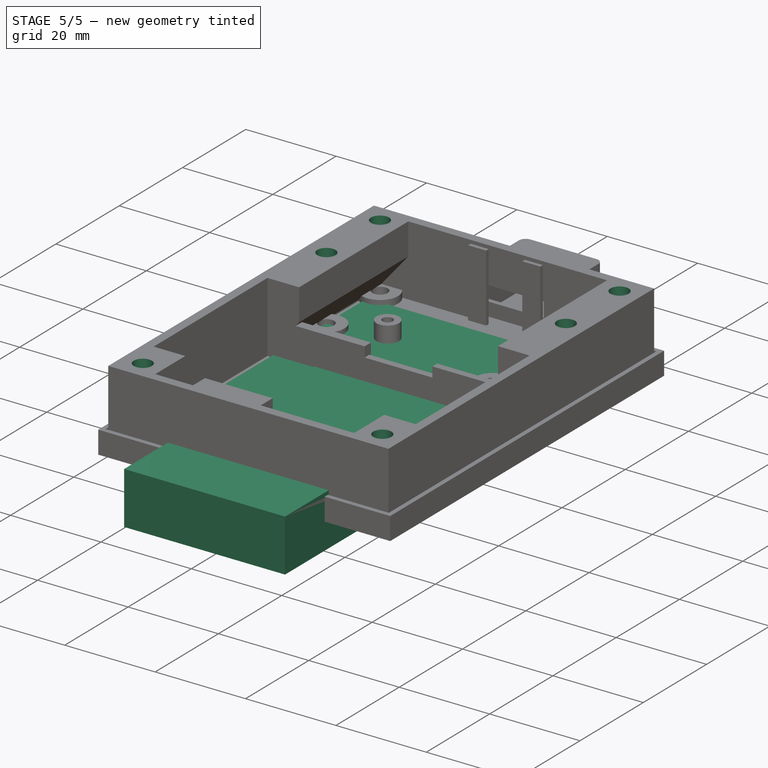
[diagram: stage 5 of 5 — iso view after this stage's code; geometry added in this stage tinted green]
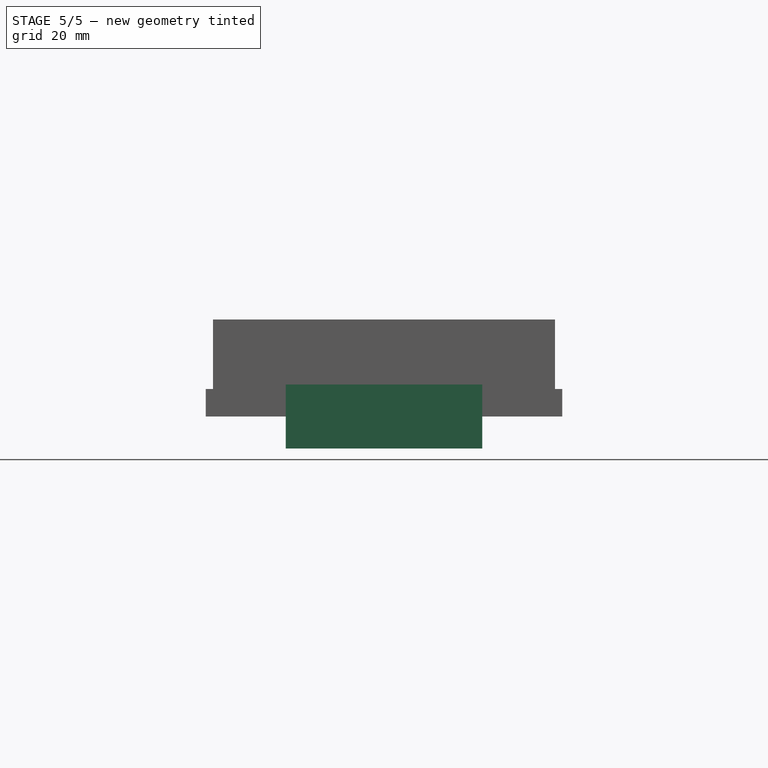
[diagram: stage 5 of 5 — front view after this stage's code; geometry added in this stage tinted green]
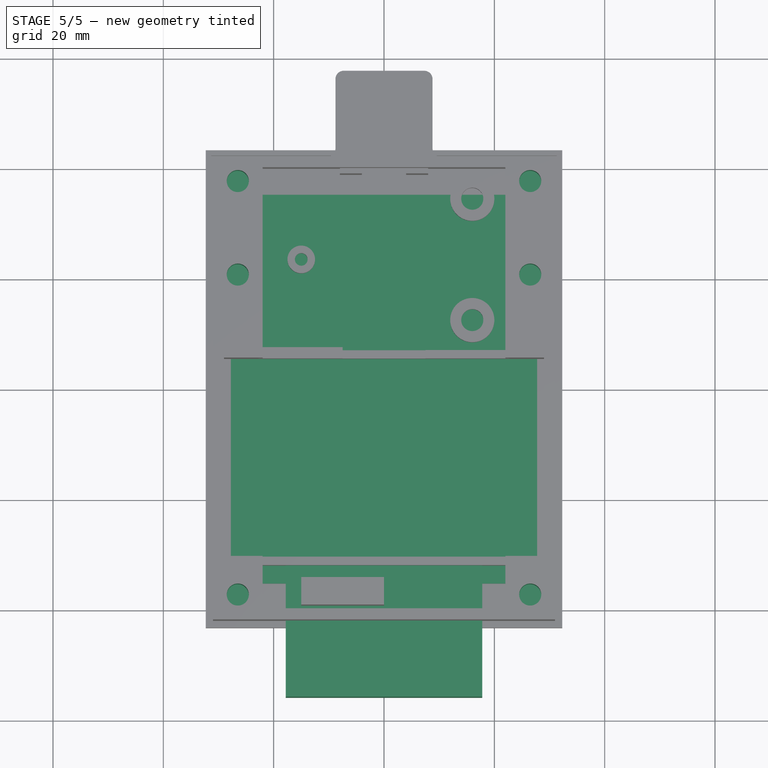
[diagram: stage 5 of 5 — top view after this stage's code; geometry added in this stage tinted green]
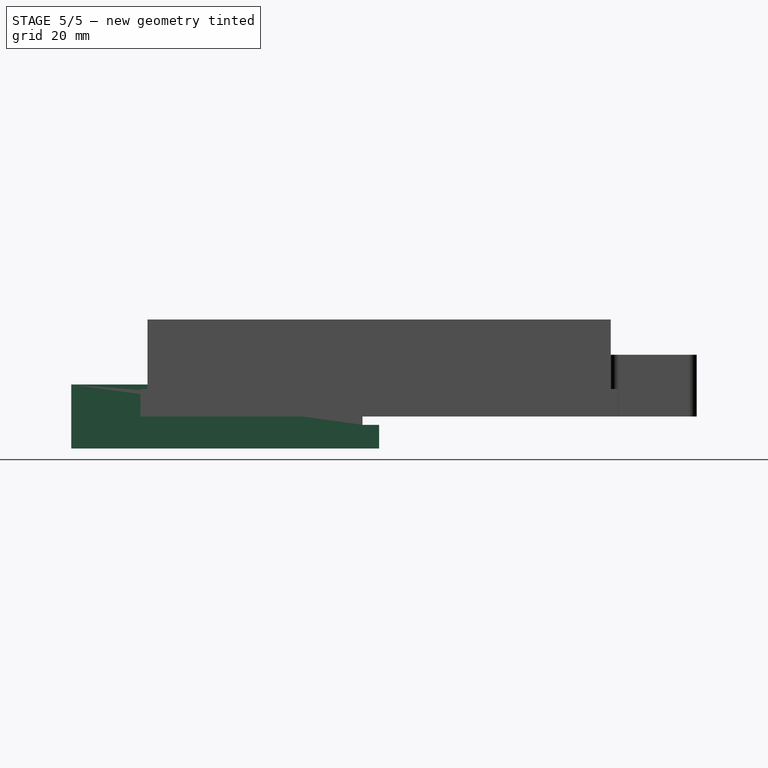
[diagram: stage 5 of 5 — right view after this stage's code; geometry added in this stage tinted green]
FEATURE [Sketcher::SketchObject] Sketch006  label="BatBoxBaseSketch"
  FullyConstrained = true
  MapMode = 5
  Placement = pos=(0,0,0) rot=(1,0,0;1.5708rad)
  Support = -> [XZ_Plane065]
  expr: Constraints[8] = <<RAKTrackerSheet>>.BatBoxHeight
  expr: Constraints[9] = <<RAKTrackerSheet>>.BatBoxWidth
  sketch-geometry (4):
    g0: LineSegment StartX=-17.8 StartY=5.8 StartZ=0 EndX=17.8 EndY=5.8 EndZ=0
    g1: LineSegment StartX=17.8 StartY=5.8 StartZ=0 EndX=17.8 EndY=-5.8 EndZ=0
    g2: LineSegment StartX=17.8 StartY=-5.8 StartZ=0 EndX=-17.8 EndY=-5.8 EndZ=0
    g3: LineSegment StartX=-17.8 StartY=-5.8 StartZ=0 EndX=-17.8 EndY=5.8 EndZ=0
  constraints (11):
    c: Coincident(g0,g1)
    c: Coincident(g1,g2)
    c: Coincident(g2,g3)
    c: Coincident(g3,g0)
    c: Horizontal(g0)
    c: Horizontal(g2)
    c: Vertical(g1)
    c: Vertical(g3)
    c: DistanceY(g1,g1) = 11.6
    c: DistanceX(g0,g0) = 35.6
    c: Symmetric(g0,g1,g-1)
FEATURE [PartDesign::Pad] Pad006  label="BatBoxBase"
  Direction = (0,-1,-2e-16)
  Length = 55.8
  Length2 = 10
  Placement = pos=(0,0,0) rot=(1,0,0;1.5708rad)
  Profile = -> Sketch006
  ReferenceAxis = -> Sketch006 [N_Axis]
  Type = 0
  expr: Length = <<RAKTrackerSheet>>.BatBoxLength
FEATURE [Sketcher::SketchObject] Sketch007  label="BatBoxWallSketch"
  FullyConstrained = true
  MapMode = 5
  Placement = pos=(0,0,0) rot=(1,0,0;1.5708rad)
  Support = -> [XZ_Plane065]
  expr: Constraints[8] = <<RAKTrackerSheet>>.BatWidth
  expr: Constraints[9] = <<RAKTrackerSheet>>.BatHeight
  sketch-geometry (4):
    g0: LineSegment StartX=-17 StartY=5 StartZ=0 EndX=17 EndY=5 EndZ=0
    g1: LineSegment StartX=17 StartY=5 StartZ=0 EndX=17 EndY=-5 EndZ=0
    g2: LineSegment StartX=17 StartY=-5 StartZ=0 EndX=-17 EndY=-5 EndZ=0
    g3: LineSegment StartX=-17 StartY=-5 StartZ=0 EndX=-17 EndY=5 EndZ=0
  constraints (11):
    c: Coincident(g0,g1)
    c: Coincident(g1,g2)
    c: Coincident(g2,g3)
    c: Coincident(g3,g0)
    c: Horizontal(g0)
    c: Horizontal(g2)
    c: Vertical(g1)
    c: Vertical(g3)
    c: DistanceX(g0,g0) = 34
    c: DistanceY(g1,g1) = 10
    c: Symmetric(g0,g1,g-1)
FEATURE [PartDesign::Pocket] Pocket  label="BatBoxWall"
  BaseFeature = -> Pad006
  Direction = (0,1,2e-16)
  Length = 55
  Length2 = 5
  Placement = pos=(0,0,0) rot=(1,0,0;1.5708rad)
  Profile = -> Sketch007
  ReferenceAxis = -> Sketch007 [N_Axis]
  Reversed = true
  Type = 0
  expr: Length = <<RAKTrackerSheet>>.BatLength
FEATURE [Sketcher::SketchObject] Sketch008  label="BatBoxCableHoleSketch"
  ExternalGeometry = -> [Sketch006]
  FullyConstrained = true
  MapMode = 5
  Placement = pos=(0,0,0) rot=(1,0,0;1.5708rad)
  Support = -> [XZ_Plane065]
  expr: Constraints[18] = <<RAKTrackerSheet>>.BatBoxWireGap
  expr: Constraints[38] = <<RAKTrackerSheet>>.BatBoxWireGap
  sketch-geometry (16):
    g0: LineSegment StartX=-17.8 StartY=5.8 StartZ=0 EndX=-14.8 EndY=5.8 EndZ=0
    g1: LineSegment StartX=-14.8 StartY=5.8 StartZ=0 EndX=-14.8 EndY=2.8 EndZ=0
    g2: LineSegment StartX=-14.8 StartY=2.8 StartZ=0 EndX=-17.8 EndY=2.8 EndZ=0
    g3: LineSegment StartX=-17.8 StartY=2.8 StartZ=0 EndX=-17.8 EndY=5.8 EndZ=0
    g4: LineSegment StartX=17.8 StartY=-5.8 StartZ=0 EndX=14.8 EndY=-5.8 EndZ=0
    g5: LineSegment StartX=14.8 StartY=-5.8 StartZ=0 EndX=14.8 EndY=-2.8 EndZ=0
    g6: LineSegment StartX=14.8 StartY=-2.8 StartZ=0 EndX=17.8 EndY=-2.8 EndZ=0
    g7: LineSegment StartX=17.8 StartY=-2.8 StartZ=0 EndX=17.8 EndY=-5.8 EndZ=0
    g8: LineSegment StartX=-17.8 StartY=1.5 StartZ=0 EndX=-14.8 EndY=1.5 EndZ=0
    g9: LineSegment StartX=-14.8 StartY=1.5 StartZ=0 EndX=-14.8 EndY=-1.5 EndZ=0
    g10: LineSegment StartX=-14.8 StartY=-1.5 StartZ=0 EndX=-17.8 EndY=-1.5 EndZ=0
    g11: LineSegment StartX=-17.8 StartY=-1.5 StartZ=0 EndX=-17.8 EndY=1.5 EndZ=0
    g12: LineSegment StartX=17.8 StartY=1.5 StartZ=0 EndX=14.8 EndY=1.5 EndZ=0
    g13: LineSegment StartX=14.8 StartY=1.5 StartZ=0 EndX=14.8 EndY=-1.5 EndZ=0
    g14: LineSegment StartX=14.8 StartY=-1.5 StartZ=0 EndX=17.8 EndY=-1.5 EndZ=0
    g15: LineSegment StartX=17.8 StartY=-1.5 StartZ=0 EndX=17.8 EndY=1.5 EndZ=0
  constraints (44):
    c: Coincident(g0,g1)
    c: Coincident(g1,g2)
    c: Coincident(g2,g3)
    c: Coincident(g3,g0)
    c: Horizontal(g0)
    c: Horizontal(g2)
    c: Vertical(g1)
    c: Vertical(g3)
    c: Coincident(g0,g-4)
    c: Coincident(g4,g5)
    c: Coincident(g5,g6)
    c: Coincident(g6,g7)
    c: Coincident(g7,g4)
    c: Horizontal(g4)
    c: Horizontal(g6)
    c: Vertical(g5)
    c: Vertical(g7)
    c: Coincident(g4,g-6)
    c: DistanceX(g0,g0) = 3
    c: Coincident(g8,g9)
    c: Coincident(g9,g10)
    c: Coincident(g10,g11)
    c: Coincident(g11,g8)
    c: Horizontal(g8)
    c: Horizontal(g10)
    c: Vertical(g9)
    c: PointOnObject(g8,g-4)
    c: Coincident(g12,g13)
    c: Coincident(g13,g14)
    c: Coincident(g14,g15)
    c: Coincident(g15,g12)
    c: Horizontal(g12)
    c: Horizontal(g14)
    c: Vertical(g13)
    c: PointOnObject(g12,g-6)
    c: Equal(g0,g8)
    c: Equal(g8,g12)
    c: Equal(g12,g6)
    c: DistanceY(g3,g3) = 3
    c: Equal(g3,g11)
    c: Equal(g11,g7)
    c: Equal(g7,g15)
    c: Symmetric(g8,g10,g-1)
    c: Symmetric(g12,g14,g-1)
FEATURE [PartDesign::Pocket] Pocket001  label="BatBoxCableHole"
  BaseFeature = -> Pocket
  Direction = (0,1,2e-16)
  Length = 3
  Length2 = 5
  Placement = pos=(0,0,0) rot=(1,0,0;1.5708rad)
  Profile = -> Sketch008
  ReferenceAxis = -> Sketch008 [N_Axis]
  Reversed = true
  Type = 0
  expr: Length = <<RAKTrackerSheet>>.BatBoxWireGap
FEATURE [PartDesign::Body] Body001  label="BatteryBox"
  Group = -> [Sketch006,Pad006,Sketch007,Pocket,Sketch008,Pocket001]
  Origin = -> Origin065
  Placement = pos=(27,-12.5,0.5) rot=(0,0,-1;1.5708rad)
  Tip = -> Pocket001
FEATURE [Sketcher::SketchObject] Sketch009
  FullyConstrained = true
  MapMode = 5
  Support = -> [XY_Plane066]
  expr: Constraints[8] = <<RAKTrackerSheet>>.SolarPanelWidth
  expr: Constraints[9] = <<RAKTrackerSheet>>.SolarPanelLength
  sketch-geometry (4):
    g0: LineSegment StartX=-27.75 StartY=35.25 StartZ=0 EndX=27.75 EndY=35.25 EndZ=0
    g1: LineSegment StartX=27.75 StartY=35.25 StartZ=0 EndX=27.75 EndY=-35.25 EndZ=0
    g2: LineSegment StartX=27.75 StartY=-35.25 StartZ=0 EndX=-27.75 EndY=-35.25 EndZ=0
    g3: LineSegment StartX=-27.75 StartY=-35.25 StartZ=0 EndX=-27.75 EndY=35.25 EndZ=0
  constraints (11):
    c: Coincident(g0,g1)
    c: Coincident(g1,g2)
    c: Coincident(g2,g3)
    c: Coincident(g3,g0)
    c: Horizontal(g0)
    c: Horizontal(g2)
    c: Vertical(g1)
    c: Vertical(g3)
    c: DistanceX(g0,g0) = 55.5
    c: DistanceY(g1,g1) = 70.5
    c: Symmetric(g0,g1,g-1)
FEATURE [PartDesign::Pad] Pad007
  Direction = (0,0,1)
  Length = 2.5
  Length2 = 10
  Profile = -> Sketch009
  ReferenceAxis = -> Sketch009 [N_Axis]
  Type = 0
  expr: Length = <<RAKTrackerSheet>>.SolarPanelHeight
FEATURE [PartDesign::Pocket] Pocket004  label="BatBoxLidHoles"
  BaseFeature = -> Pocket003
  Direction = (0,0,-1)
  Length = 8
  Length2 = 5
  Profile = -> Sketch013
  ReferenceAxis = -> Sketch013 [N_Axis]
  Type = 0
  expr: Length = <<RAKTrackerSheet>>.BoxScrewHeight
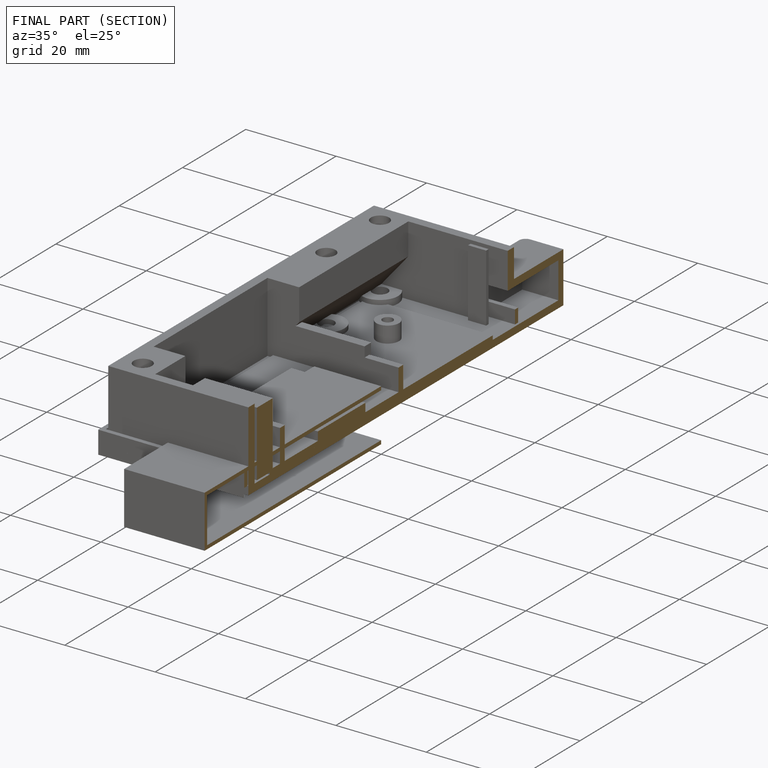
[diagram: finished part — half-section view (interior)]
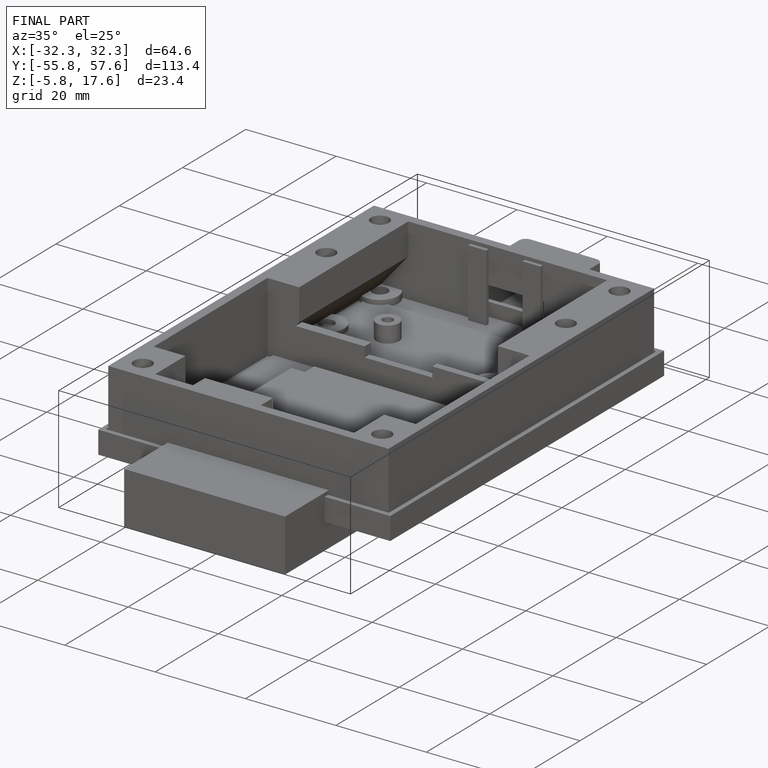
[diagram: finished part — iso view with bounding-box wireframe]
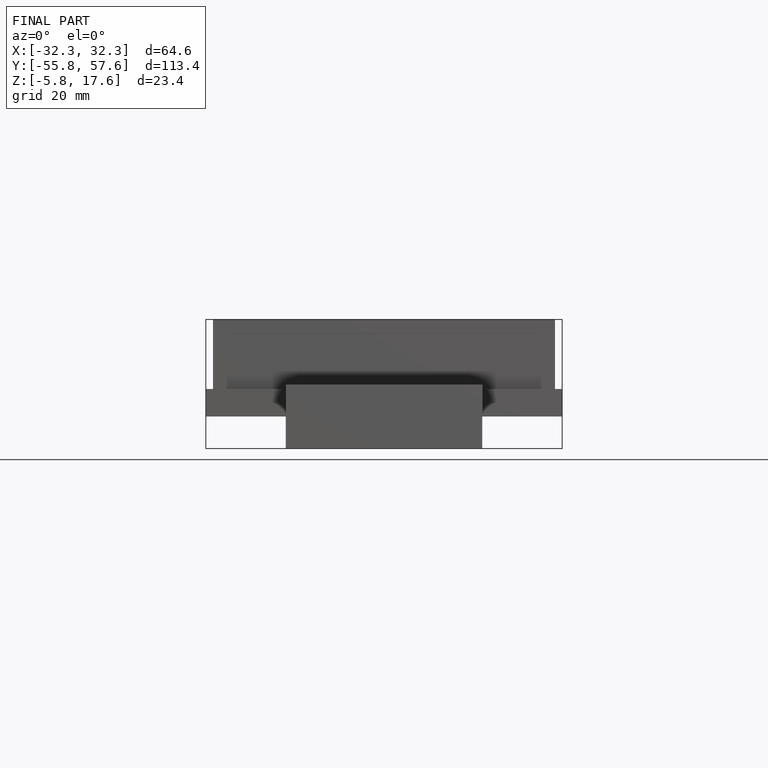
[diagram: finished part — front view with bounding-box wireframe]
